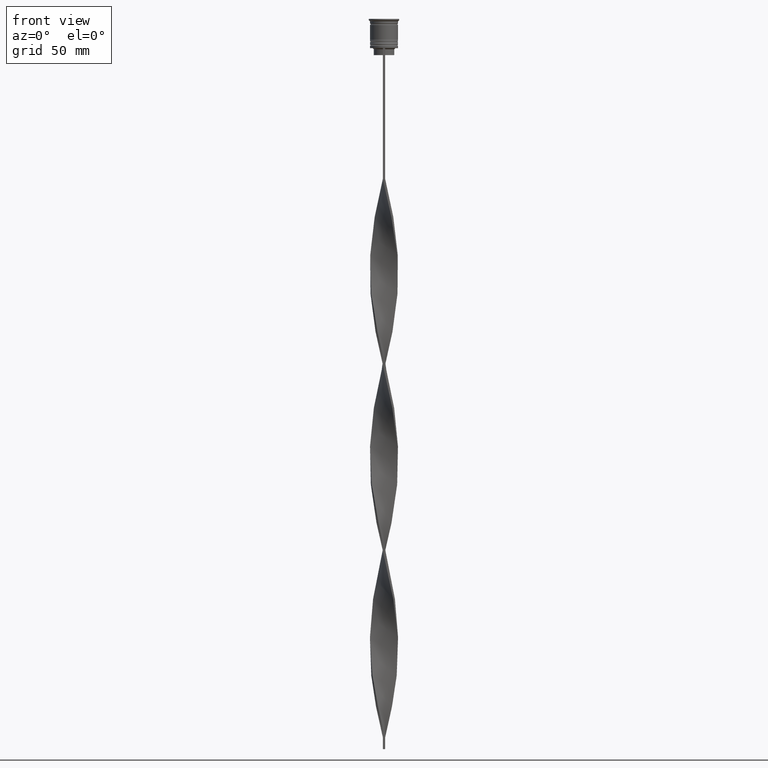
[diagram: clean part render]
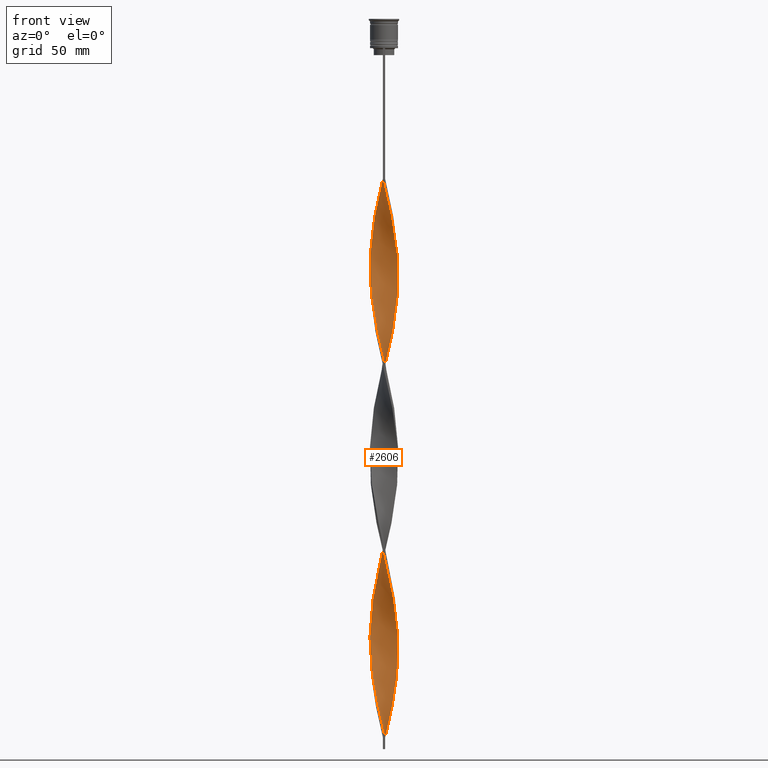
[diagram: same view with one face highlighted and labeled with its STEP entity id]
A machine part, front view. The second image highlights one B-rep face of the part: STEP entity #2606.
In plain terms, the highlighted face is a freeform B-spline surface patch.
Its self-contained STEP definition (entity closure, byte-faithful):
#2 = CARTESIAN_POINT ( 'NONE',  ( 1.839832417264294362, -5.752351491147217111, -237.7916666666667140 ) ) ;
#5 = CARTESIAN_POINT ( 'NONE',  ( -5.752351491147217111, 1.839832417264294362, -257.7083333333333144 ) ) ;
#9 = CARTESIAN_POINT ( 'NONE',  ( 3.889087296526011706, -4.596194077712558723, -88.41666666666667140 ) ) ;
#19 = CARTESIAN_POINT ( 'NONE',  ( 2.329630224397261529, 5.551830600583447684, -299.5333333333333030 ) ) ;
#27 = CARTESIAN_POINT ( 'NONE',  ( -0.9722102409477106910, 5.960649146587692293, -70.49166666666670267 ) ) ;
#29 = CARTESIAN_POINT ( 'NONE',  ( -5.960649146587691405, -0.9722102409477102469, -110.3250000000000171 ) ) ;
#49 = CARTESIAN_POINT ( 'NONE',  ( -5.860847594958396023, -1.378573708102106776, -195.9666666666666686 ) ) ;
#52 = CARTESIAN_POINT ( 'NONE',  ( 2.766568768664324995, -5.368484725653164702, -158.1250000000000284 ) ) ;
#58 = CARTESIAN_POINT ( 'NONE',  ( 0.4999999999999990563, -6.000000000000000000, -307.5000000000000000 ) ) ;
#71 = CARTESIAN_POINT ( 'NONE',  ( -6.004347276090942209, -0.4447626199438153849, -191.9833333333333485 ) ) ;
#73 = CARTESIAN_POINT ( 'NONE',  ( -2.278439736343097710, -5.573034394999980101, -295.5499999999999545 ) ) ;
#90 = CARTESIAN_POINT ( 'NONE',  ( -2.329630224397262417, -5.551830600583447684, -219.8666666666666742 ) ) ;
#92 = CARTESIAN_POINT ( 'NONE',  ( -6.000000000000000000, -0.4999999999999994449, -267.6666666666667425 ) ) ;
#108 = CARTESIAN_POINT ( 'NONE',  ( 2.278439736343096378, -5.573034394999980989, -80.45000000000000284 ) ) ;
#111 = CARTESIAN_POINT ( 'NONE',  ( 2.278439736343096378, -5.573034394999980989, -239.7833333333333599 ) ) ;
#115 = CARTESIAN_POINT ( 'NONE',  ( -5.393717298852745756, 2.717047055421900836, -253.7250000000000227 ) ) ;
#137 = CARTESIAN_POINT ( 'NONE',  ( -3.169446260531464166, 5.119043895260434240, -80.45000000000000284 ) ) ;
#139 = CARTESIAN_POINT ( 'NONE',  ( -0.02778975905228496524, 6.039350853412310371, -225.8416666666666970 ) ) ;
#148 = CARTESIAN_POINT ( 'NONE',  ( -2.766568768664325884, 5.368484725653163814, -78.45833333333334281 ) ) ;
#155 = CARTESIAN_POINT ( 'NONE',  ( 6.000000000000000000, -0.5000000000000001110, -108.3333333333333428 ) ) ;
#157 = CARTESIAN_POINT ( 'NONE',  ( 3.572323752398603336, -4.869603064867704667, -162.1083333333333769 ) ) ;
#159 = CARTESIAN_POINT ( 'NONE',  ( -1.432450960538953932, 5.847912811050711035, -231.8166666666666629 ) ) ;
#172 = EDGE_CURVE ( 'NONE', #2112, #1284, #221, .T. ) ;
#174 = CARTESIAN_POINT ( 'NONE',  ( -5.573034394999981878, -2.278439736343095934, -199.9500000000000171 ) ) ;
#176 = CARTESIAN_POINT ( 'NONE',  ( -5.573034394999980101, 2.278439736343096822, -96.38333333333335418 ) ) ;
#186 = CARTESIAN_POINT ( 'NONE',  ( -3.889087296526011261, 4.596194077712559611, -168.0833333333333712 ) ) ;
#189 = CARTESIAN_POINT ( 'NONE',  ( -2.329630224397260641, 5.551830600583447684, -76.46666666666666856 ) ) ;
#196 = CARTESIAN_POINT ( 'NONE',  ( -3.572323752398603780, -4.869603064867703779, -213.8916666666666799 ) ) ;
#198 = CARTESIAN_POINT ( 'NONE',  ( 5.969343698769574935, -0.9173149989399207449, -182.0250000000000341 ) ) ;
#206 = CARTESIAN_POINT ( 'NONE',  ( 4.560209340103448028, -3.931220010942312992, -92.40000000000000568 ) ) ;
#213 = CARTESIAN_POINT ( 'NONE',  ( -6.000000000000000000, 0.5000000000000008882, -188.0000000000000000 ) ) ;
#216 = CARTESIAN_POINT ( 'NONE',  ( -3.931220010942312992, 4.560209340103448028, -84.43333333333333712 ) ) ;
#221 =( BOUNDED_CURVE ( )  B_SPLINE_CURVE ( 2, ( #492, #3324, #1149, #2993, #189, #148, #1408, #3952, #1453, #474, #1738, #819, #3010, #2091, #880, #3725, #247, #3860, #359, #2175, #2871, #29, #1172, #3424, #3500, #2892, #681, #1285, #226, #3405, #3838, #995, #2445, #3762, #2559, #2249, #2267, #267, #1312, #1528, #571, #644, #976, #662, #1954, #52, #1838, #2800, #1487, #2584, #2781, #1509, #3539, #3112, #2758, #861, #551, #4030, #1915, #4051, #1212, #1600, #4068, #1194, #1815, #2136, #901, #3521, #1935, #3092, #2484, #2463, #3186, #339, #3742, #2153, #3204, #1620, #2648, #139, #3924, #793, #159, #1663, #400, #1420, #3583, #3003, #3880, #2288, #3227, #1060, #2934, #115, #2020, #2335, #1013, #3561, #747, #465, #92, #419, #2377, #1375, #2044, #707, #1350, #2315, #3288, #441, #3605, #1729, #1683, #1979, #73, #1707, #1997, #2624, #2691, #2983, #1037 ),
 .UNSPECIFIED., .F., .T. ) 
 B_SPLINE_CURVE_WITH_KNOTS ( ( 3, 2, 2, 2, 2, 2, 2, 2, 2, 2, 2, 2, 2, 2, 2, 2, 2, 2, 2, 2, 2, 2, 2, 2, 2, 2, 2, 2, 2, 2, 2, 2, 2, 2, 2, 2, 2, 2, 2, 2, 2, 2, 2, 2, 2, 2, 2, 2, 2, 2, 2, 2, 2, 2, 2, 2, 2, 2, 2, 2, 3 ),
 ( 0.000000000000000000, 0.01250000000000000243, 0.02500000000000000486, 0.03749999999999999861, 0.05000000000000000971, 0.06250000000000000000, 0.07499999999999999722, 0.08749999999999998057, 0.1000000000000000194, 0.1125000000000000028, 0.1250000000000000000, 0.1375000000000000111, 0.1499999999999999944, 0.1625000000000000056, 0.1749999999999999611, 0.1875000000000000000, 0.2000000000000000389, 0.2124999999999999944, 0.2250000000000000056, 0.2374999999999999611, 0.2500000000000000000, 0.2625000000000000111, 0.2750000000000000222, 0.2874999999999999778, 0.2999999999999999889, 0.3125000000000000000, 0.3250000000000000111, 0.3375000000000000777, 0.3499999999999999223, 0.3624999999999999889, 0.3750000000000000000, 0.3875000000000000111, 0.4000000000000000777, 0.4124999999999999223, 0.4249999999999999889, 0.4375000000000000000, 0.4500000000000000111, 0.4625000000000000777, 0.4749999999999999223, 0.4874999999999999889, 0.5000000000000000000, 0.5124999999999999556, 0.5250000000000000222, 0.5374999999999999778, 0.5500000000000000444, 0.5625000000000000000, 0.5749999999999999556, 0.5875000000000000222, 0.5999999999999999778, 0.6125000000000000444, 0.6250000000000000000, 0.6374999999999999556, 0.6500000000000000222, 0.6624999999999999778, 0.6750000000000001554, 0.6875000000000000000, 0.6999999999999998446, 0.7125000000000000222, 0.7249999999999999778, 0.7375000000000001554, 0.7500000000000000000 ),
 .UNSPECIFIED. ) 
 CURVE ( )  GEOMETRIC_REPRESENTATION_ITEM ( )  RATIONAL_B_SPLINE_CURVE ( ( 1.000000000000000000, 0.9969173337331279638, 1.000000000000000000, 0.9969173337331279638, 1.000000000000000000, 0.9969173337331279638, 1.000000000000000000, 0.9969173337331279638, 1.000000000000000000, 0.9969173337331279638, 1.000000000000000000, 0.9969173337331279638, 1.000000000000000000, 0.9969173337331279638, 1.000000000000000000, 0.9969173337331279638, 1.000000000000000000, 0.9969173337331279638, 1.000000000000000000, 0.9969173337331279638, 1.000000000000000000, 0.9969173337331279638, 1.000000000000000000, 0.9969173337331279638, 1.000000000000000000, 0.9969173337331279638, 1.000000000000000000, 0.9969173337331279638, 1.000000000000000000, 0.9969173337331279638, 1.000000000000000000, 0.9969173337331279638, 1.000000000000000000, 0.9969173337331279638, 1.000000000000000000, 0.9969173337331279638, 1.000000000000000000, 0.9969173337331279638, 1.000000000000000000, 0.9969173337331279638, 1.000000000000000000, 0.9969173337331279638, 1.000000000000000000, 0.9969173337331279638, 1.000000000000000000, 0.9969173337331279638, 1.000000000000000000, 0.9969173337331279638, 1.000000000000000000, 0.9969173337331279638, 1.000000000000000000, 0.9969173337331279638, 1.000000000000000000, 0.9969173337331279638, 1.000000000000000000, 0.9969173337331279638, 1.000000000000000000, 0.9969173337331279638, 1.000000000000000000, 0.9969173337331279638, 1.000000000000000000, 0.9969173337331279638, 1.000000000000000000, 0.9969173337331279638, 1.000000000000000000, 0.9969173337331279638, 1.000000000000000000, 0.9969173337331279638, 1.000000000000000000, 0.9969173337331279638, 1.000000000000000000, 0.9969173337331279638, 1.000000000000000000, 0.9969173337331279638, 1.000000000000000000, 0.9969173337331279638, 1.000000000000000000, 0.9969173337331279638, 1.000000000000000000, 0.9969173337331279638, 1.000000000000000000, 0.9969173337331279638, 1.000000000000000000, 0.9969173337331279638, 1.000000000000000000, 0.9969173337331279638, 1.000000000000000000, 0.9969173337331279638, 1.000000000000000000, 0.9969173337331279638, 1.000000000000000000, 0.9969173337331279638, 1.000000000000000000, 0.9969173337331279638, 1.000000000000000000, 0.9969173337331279638, 1.000000000000000000, 0.9969173337331279638, 1.000000000000000000, 0.9969173337331279638, 1.000000000000000000, 0.9969173337331279638, 1.000000000000000000, 0.9969173337331279638, 1.000000000000000000, 0.9969173337331279638, 1.000000000000000000, 0.9969173337331279638, 1.000000000000000000, 0.9969173337331279638, 1.000000000000000000, 0.9969173337331279638, 1.000000000000000000, 0.9969173337331279638, 1.000000000000000000, 0.9969173337331279638, 1.000000000000000000, 0.9969173337331279638, 1.000000000000000000, 0.9969173337331279638, 1.000000000000000000 ) ) 
 REPRESENTATION_ITEM ( '' )  );
#226 = CARTESIAN_POINT ( 'NONE',  ( -4.560209340103448916, -3.931220010942312104, -124.2666666666666799 ) ) ;
#232 = CARTESIAN_POINT ( 'NONE',  ( -3.889087296526011261, 4.596194077712559611, -168.0833333333333712 ) ) ;
#235 = CARTESIAN_POINT ( 'NONE',  ( -5.969343698769574935, 0.9173149989399227433, -261.6916666666666629 ) ) ;
#247 = CARTESIAN_POINT ( 'NONE',  ( -5.860847594958395135, 1.378573708102108331, -100.3666666666666742 ) ) ;
#255 = CARTESIAN_POINT ( 'NONE',  ( -2.329630224397262417, -5.551830600583447684, -219.8666666666666742 ) ) ;
#258 = CARTESIAN_POINT ( 'NONE',  ( 0.4999999999999990563, -6.000000000000000000, -307.5000000000000000 ) ) ;
#267 = CARTESIAN_POINT ( 'NONE',  ( -0.9173149989399231874, -5.969343698769575823, -142.1916666666666913 ) ) ;
#274 = CARTESIAN_POINT ( 'NONE',  ( 5.573034394999980989, 2.278439736343096378, -279.6166666666666742 ) ) ;
#278 = CARTESIAN_POINT ( 'NONE',  ( -4.596194077712558723, 3.889087296526011706, -247.7500000000000284 ) ) ;
#282 = CARTESIAN_POINT ( 'NONE',  ( 1.892691680130198284, 5.735176475513732441, -142.1916666666666913 ) ) ;
#290 = CARTESIAN_POINT ( 'NONE',  ( 6.039350853412310371, -0.02778975905228946511, -269.6583333333334167 ) ) ;
#293 = CARTESIAN_POINT ( 'NONE',  ( 0.02778975905228832713, -6.039350853412310371, -305.5083333333334963 ) ) ;
#298 = CARTESIAN_POINT ( 'NONE',  ( -3.527358977712830246, 4.902271885939098794, -166.0916666666666686 ) ) ;
#313 = CARTESIAN_POINT ( 'NONE',  ( 3.889087296526013038, 4.596194077712556947, -207.9166666666666572 ) ) ;
#319 = CARTESIAN_POINT ( 'NONE',  ( 2.766568768664326328, 5.368484725653163814, -138.2083333333333144 ) ) ;
#329 = CARTESIAN_POINT ( 'NONE',  ( 5.368484725653163814, -2.766568768664325884, -257.7083333333333144 ) ) ;
#336 = CARTESIAN_POINT ( 'NONE',  ( 2.329630224397261529, 5.551830600583447684, -299.5333333333333030 ) ) ;
#339 = CARTESIAN_POINT ( 'NONE',  ( 2.717047055421899060, 5.393717298852746644, -213.8916666666666799 ) ) ;
#357 = CARTESIAN_POINT ( 'NONE',  ( 1.378573708102107886, -5.860847594958395135, -235.8000000000000114 ) ) ;
#359 = CARTESIAN_POINT ( 'NONE',  ( -6.004347276090942209, 0.4447626199438168837, -104.3499999999999943 ) ) ;
#378 = CARTESIAN_POINT ( 'NONE',  ( 5.573034394999980989, 2.278439736343096378, -279.6166666666666742 ) ) ;
#398 = CARTESIAN_POINT ( 'NONE',  ( 5.147994592395920499, 3.122203016567364653, -283.6000000000000227 ) ) ;
#400 = CARTESIAN_POINT ( 'NONE',  ( -2.329630224397260641, 5.551830600583447684, -235.8000000000000114 ) ) ;
#416 = CARTESIAN_POINT ( 'NONE',  ( 6.000000000000000000, -0.5000000000000001110, -267.6666666666667425 ) ) ;
#417 = EDGE_CURVE ( 'NONE', #1423, #1187, #1668, .T. ) ;
#419 = CARTESIAN_POINT ( 'NONE',  ( -5.960649146587691405, -0.9722102409477102469, -269.6583333333334167 ) ) ;
#437 = CARTESIAN_POINT ( 'NONE',  ( 5.368484725653162926, 2.766568768664326772, -197.9583333333333997 ) ) ;
#441 = CARTESIAN_POINT ( 'NONE',  ( -4.250815615339194053, -4.290116269486020428, -285.5916666666666970 ) ) ;
#461 = CARTESIAN_POINT ( 'NONE',  ( 5.847912811050711035, -1.432450960538954376, -104.3499999999999943 ) ) ;
#463 = CARTESIAN_POINT ( 'NONE',  ( 1.432450960538953044, -5.847912811050711035, -152.1500000000000057 ) ) ;
#465 = CARTESIAN_POINT ( 'NONE',  ( -6.039350853412310371, -0.02778975905228876081, -265.6750000000000682 ) ) ;
#474 = CARTESIAN_POINT ( 'NONE',  ( -4.290116269486021316, 4.250815615339194053, -86.42499999999999716 ) ) ;
#480 = CARTESIAN_POINT ( 'NONE',  ( -5.551830600583447684, 2.329630224397261973, -180.0333333333333599 ) ) ;
#482 = CARTESIAN_POINT ( 'NONE',  ( -4.560209340103448916, -3.931220010942312104, -124.2666666666666799 ) ) ;
#492 = CARTESIAN_POINT ( 'NONE',  ( -0.4999999999999997780, 6.000000000000000888, -68.50000000000000000 ) ) ;
#500 = CARTESIAN_POINT ( 'NONE',  ( 0.9722102409477113572, 5.960649146587691405, -146.1750000000000114 ) ) ;
#502 = CARTESIAN_POINT ( 'NONE',  ( 5.752351491147215334, -1.839832417264297471, -178.0416666666667140 ) ) ;
#511 = CARTESIAN_POINT ( 'NONE',  ( -3.122203016567364653, 5.147994592395920499, -164.1000000000000227 ) ) ;
#522 = CARTESIAN_POINT ( 'NONE',  ( -2.278439736343095934, 5.573034394999980989, -160.1166666666666742 ) ) ;
#525 = CARTESIAN_POINT ( 'NONE',  ( -0.9173149989399231874, -5.969343698769574935, -142.1916666666666913 ) ) ;
#539 = CARTESIAN_POINT ( 'NONE',  ( 6.004347276090942209, 0.4447626199438162731, -112.3166666666666771 ) ) ;
#542 = CARTESIAN_POINT ( 'NONE',  ( -2.717047055421900836, -5.393717298852744868, -293.5583333333334508 ) ) ;
#551 = CARTESIAN_POINT ( 'NONE',  ( 5.860847594958395135, -1.378573708102108775, -180.0333333333333599 ) ) ;
#556 = CARTESIAN_POINT ( 'NONE',  ( -5.119043895260433352, 3.169446260531465498, -176.0500000000000114 ) ) ;
#559 = CARTESIAN_POINT ( 'NONE',  ( -5.735176475513732441, -1.892691680130197174, -273.6416666666666515 ) ) ;
#571 = CARTESIAN_POINT ( 'NONE',  ( 0.4999999999999990563, -6.000000000000000000, -148.1666666666666572 ) ) ;
#578 = CARTESIAN_POINT ( 'NONE',  ( 4.902271885939097906, 3.527358977712830246, -285.5916666666666970 ) ) ;
#581 = CARTESIAN_POINT ( 'NONE',  ( -1.432450960538953932, 5.847912811050711035, -231.8166666666666629 ) ) ;
#586 = CARTESIAN_POINT ( 'NONE',  ( -2.717047055421899060, 5.393717298852745756, -162.1083333333333769 ) ) ;
#595 = CARTESIAN_POINT ( 'NONE',  ( 6.000000000000000000, -0.5000000000000001110, -267.6666666666667425 ) ) ;
#597 = CARTESIAN_POINT ( 'NONE',  ( -1.378573708102108331, -5.860847594958395135, -299.5333333333333030 ) ) ;
#601 = CARTESIAN_POINT ( 'NONE',  ( 5.573034394999980989, 2.278439736343096378, -120.2833333333333456 ) ) ;
#611 = CARTESIAN_POINT ( 'NONE',  ( 4.869603064867703779, -3.572323752398604224, -253.7250000000000227 ) ) ;
#614 = CARTESIAN_POINT ( 'NONE',  ( -5.860847594958395135, 1.378573708102108331, -259.7000000000000455 ) ) ;
#618 = CARTESIAN_POINT ( 'NONE',  ( 3.931220010942312992, 4.560209340103447140, -132.2333333333333485 ) ) ;
#640 = CARTESIAN_POINT ( 'NONE',  ( 5.393717298852745756, 2.717047055421899948, -122.2750000000000341 ) ) ;
#644 = CARTESIAN_POINT ( 'NONE',  ( 0.9722102409477098028, -5.960649146587691405, -150.1583333333333599 ) ) ;
#652 = CARTESIAN_POINT ( 'NONE',  ( 3.527358977712831134, -4.902271885939097906, -245.7583333333333826 ) ) ;
#659 = CARTESIAN_POINT ( 'NONE',  ( -5.969343698769575823, -0.9173149989399185245, -193.9749999999999943 ) ) ;
#662 = CARTESIAN_POINT ( 'NONE',  ( 1.892691680130196952, -5.735176475513732441, -154.1416666666666799 ) ) ;
#679 = CARTESIAN_POINT ( 'NONE',  ( 5.860847594958396023, 1.378573708102107442, -275.6333333333333258 ) ) ;
#681 = CARTESIAN_POINT ( 'NONE',  ( -5.119043895260434240, -3.169446260531464166, -120.2833333333333456 ) ) ;
#704 = CARTESIAN_POINT ( 'NONE',  ( 5.368484725653163814, -2.766568768664325884, -257.7083333333333144 ) ) ;
#707 = CARTESIAN_POINT ( 'NONE',  ( -5.368484725653163814, -2.766568768664325439, -277.6250000000000568 ) ) ;
#725 = CARTESIAN_POINT ( 'NONE',  ( -4.902271885939097018, -3.527358977712832466, -205.9250000000000114 ) ) ;
#732 = CARTESIAN_POINT ( 'NONE',  ( 0.5000000000000005551, 6.000000000000000000, -307.5000000000000000 ) ) ;
#743 = CARTESIAN_POINT ( 'NONE',  ( 4.560209340103448028, -3.931220010942312992, -92.40000000000000568 ) ) ;
#745 = CARTESIAN_POINT ( 'NONE',  ( -1.378573708102108331, -5.860847594958395135, -140.1999999999999886 ) ) ;
#747 = CARTESIAN_POINT ( 'NONE',  ( -6.004347276090942209, 0.4447626199438168837, -263.6833333333333940 ) ) ;
#762 = CARTESIAN_POINT ( 'NONE',  ( 5.368484725653163814, -2.766568768664325884, -98.37500000000001421 ) ) ;
#766 = CARTESIAN_POINT ( 'NONE',  ( -3.572323752398604224, 4.869603064867704667, -82.44166666666666288 ) ) ;
#789 = CARTESIAN_POINT ( 'NONE',  ( 5.147994592395920499, 3.122203016567364653, -124.2666666666666799 ) ) ;
#791 = CARTESIAN_POINT ( 'NONE',  ( -5.119043895260434240, -3.169446260531464166, -120.2833333333333456 ) ) ;
#793 = CARTESIAN_POINT ( 'NONE',  ( -0.9722102409477105800, 5.960649146587691405, -229.8250000000000171 ) ) ;
#809 = CARTESIAN_POINT ( 'NONE',  ( -4.902271885939097018, -3.527358977712832466, -205.9250000000000114 ) ) ;
#811 = CARTESIAN_POINT ( 'NONE',  ( 5.573034394999980101, -2.278439736343097710, -176.0500000000000114 ) ) ;
#817 = CARTESIAN_POINT ( 'NONE',  ( 2.329630224397261529, 5.551830600583447684, -140.1999999999999886 ) ) ;
#819 = CARTESIAN_POINT ( 'NONE',  ( -4.902271885939097906, 3.527358977712831134, -90.40833333333335986 ) ) ;
#826 = CARTESIAN_POINT ( 'NONE',  ( 6.039350853412310371, -0.02778975905228946511, -110.3250000000000171 ) ) ;
#828 = CARTESIAN_POINT ( 'NONE',  ( -4.290116269486021316, 4.250815615339194053, -86.42499999999999716 ) ) ;
#837 = CARTESIAN_POINT ( 'NONE',  ( -0.4999999999999997780, -6.000000000000000000, -68.50000000000000000 ) ) ;
#838 = CARTESIAN_POINT ( 'NONE',  ( 3.122203016567365541, -5.147994592395921387, -84.43333333333333712 ) ) ;
#850 = CARTESIAN_POINT ( 'NONE',  ( -4.596194077712559611, -3.889087296526010373, -207.9166666666666572 ) ) ;
#853 = CARTESIAN_POINT ( 'NONE',  ( -4.869603064867704667, -3.572323752398604224, -281.6083333333334622 ) ) ;
#861 = CARTESIAN_POINT ( 'NONE',  ( 5.752351491147215334, -1.839832417264297248, -178.0416666666667140 ) ) ;
#866 = CARTESIAN_POINT ( 'NONE',  ( 1.378573708102107886, -5.860847594958395135, -235.8000000000000114 ) ) ;
#869 = CARTESIAN_POINT ( 'NONE',  ( -6.004347276090942209, 0.4447626199438168837, -263.6833333333333940 ) ) ;
#880 = CARTESIAN_POINT ( 'NONE',  ( -5.573034394999980101, 2.278439736343096822, -96.38333333333335418 ) ) ;
#881 = CARTESIAN_POINT ( 'NONE',  ( 0.5000000000000000000, 2.000000000000000000, -307.5000000000000000 ) ) ;
#888 = CARTESIAN_POINT ( 'NONE',  ( 4.869603064867706443, 3.572323752398602004, -201.9416666666667197 ) ) ;
#901 = CARTESIAN_POINT ( 'NONE',  ( 5.119043895260435129, 3.169446260531463722, -199.9500000000000171 ) ) ;
#911 = CARTESIAN_POINT ( 'NONE',  ( 0.4447626199438179939, 6.004347276090941321, -223.8500000000000227 ) ) ;
#916 = CARTESIAN_POINT ( 'NONE',  ( 5.368484725653163814, -2.766568768664325884, -98.37500000000002842 ) ) ;
#927 = CARTESIAN_POINT ( 'NONE',  ( 5.752351491147217111, 1.839832417264293918, -277.6250000000000568 ) ) ;
#930 = CARTESIAN_POINT ( 'NONE',  ( 2.717047055421899060, 5.393717298852745756, -213.8916666666666799 ) ) ;
#934 = CARTESIAN_POINT ( 'NONE',  ( 1.839832417264294362, -5.752351491147217111, -78.45833333333332860 ) ) ;
#949 = CARTESIAN_POINT ( 'NONE',  ( 6.039350853412310371, -0.02778975905228946511, -110.3250000000000171 ) ) ;
#972 = CARTESIAN_POINT ( 'NONE',  ( -3.931220010942313881, -4.560209340103447140, -211.9000000000000057 ) ) ;
#976 = CARTESIAN_POINT ( 'NONE',  ( 1.432450960538953044, -5.847912811050711035, -152.1500000000000057 ) ) ;
#992 = CARTESIAN_POINT ( 'NONE',  ( -4.290116269486023981, -4.250815615339190501, -209.9083333333333883 ) ) ;
#995 = CARTESIAN_POINT ( 'NONE',  ( -3.527358977712831134, -4.902271885939097906, -130.2416666666667027 ) ) ;
#1011 = CARTESIAN_POINT ( 'NONE',  ( 4.560209340103448028, -3.931220010942312992, -251.7333333333333769 ) ) ;
#1013 = CARTESIAN_POINT ( 'NONE',  ( -5.860847594958395135, 1.378573708102108331, -259.7000000000000455 ) ) ;
#1032 = CARTESIAN_POINT ( 'NONE',  ( -0.4999999999999997780, -6.000000000000000000, -68.50000000000000000 ) ) ;
#1034 = CARTESIAN_POINT ( 'NONE',  ( 0.9722102409477113572, 5.960649146587692293, -305.5083333333334963 ) ) ;
#1037 = CARTESIAN_POINT ( 'NONE',  ( 0.4999999999999990563, -6.000000000000000000, -307.5000000000000000 ) ) ;
#1057 = CARTESIAN_POINT ( 'NONE',  ( 5.752351491147217111, 1.839832417264293918, -277.6250000000000568 ) ) ;
#1060 = CARTESIAN_POINT ( 'NONE',  ( -4.902271885939097906, 3.527358977712831134, -249.7416666666667027 ) ) ;
#1076 = CARTESIAN_POINT ( 'NONE',  ( 3.527358977712831134, -4.902271885939097906, -86.42499999999999716 ) ) ;
#1078 = CARTESIAN_POINT ( 'NONE',  ( -5.393717298852744868, 2.717047055421900836, -94.39166666666669414 ) ) ;
#1095 = CARTESIAN_POINT ( 'NONE',  ( -1.378573708102106998, 5.860847594958396023, -156.1333333333333542 ) ) ;
#1098 = CARTESIAN_POINT ( 'NONE',  ( -0.4447626199438173278, -6.004347276090941321, -144.1833333333333371 ) ) ;
#1119 = CARTESIAN_POINT ( 'NONE',  ( 3.169446260531464610, 5.119043895260433352, -136.2166666666666686 ) ) ;
#1121 = CARTESIAN_POINT ( 'NONE',  ( -2.717047055421900836, -5.393717298852744868, -134.2249999999999943 ) ) ;
#1128 = CARTESIAN_POINT ( 'NONE',  ( 5.119043895260433352, -3.169446260531464610, -96.38333333333335418 ) ) ;
#1136 = CARTESIAN_POINT ( 'NONE',  ( 3.931220010942312992, 4.560209340103447140, -132.2333333333333485 ) ) ;
#1138 = CARTESIAN_POINT ( 'NONE',  ( -1.839832417264294806, -5.752351491147217111, -138.2083333333333144 ) ) ;
#1145 = CARTESIAN_POINT ( 'NONE',  ( 4.902271885939097906, 3.527358977712830246, -126.2583333333333258 ) ) ;
#1147 = EDGE_CURVE ( 'NONE', #1187, #1284, #2588, .T. ) ;
#1149 = CARTESIAN_POINT ( 'NONE',  ( -1.432450960538953932, 5.847912811050711035, -72.48333333333334849 ) ) ;
#1153 = LINE ( 'NONE', #1818, #2839 ) ;
#1155 = CARTESIAN_POINT ( 'NONE',  ( -1.892691680130196286, -5.735176475513732441, -221.8583333333333769 ) ) ;
#1158 = CARTESIAN_POINT ( 'NONE',  ( 5.551830600583448572, 2.329630224397259752, -195.9666666666666686 ) ) ;
#1172 = CARTESIAN_POINT ( 'NONE',  ( -5.847912811050711035, -1.432450960538953488, -112.3166666666666771 ) ) ;
#1182 = CARTESIAN_POINT ( 'NONE',  ( 0.9173149989399222992, -5.969343698769575823, -233.8083333333333371 ) ) ;
#1187 = VERTEX_POINT ( 'NONE', #732 ) ;
#1194 = CARTESIAN_POINT ( 'NONE',  ( 5.735176475513733330, 1.892691680130193843, -193.9750000000000227 ) ) ;
#1200 = CARTESIAN_POINT ( 'NONE',  ( 4.250815615339194053, -4.290116269486021316, -249.7416666666667027 ) ) ;
#1212 = CARTESIAN_POINT ( 'NONE',  ( 6.000000000000000000, 0.4999999999999987232, -188.0000000000000000 ) ) ;
#1217 = CARTESIAN_POINT ( 'NONE',  ( 2.717047055421899948, -5.393717298852746644, -241.7750000000000341 ) ) ;
#1220 = CARTESIAN_POINT ( 'NONE',  ( -0.02778975905228496524, 6.039350853412310371, -225.8416666666666970 ) ) ;
#1226 = CARTESIAN_POINT ( 'NONE',  ( -1.378573708102106998, 5.860847594958396023, -156.1333333333333542 ) ) ;
#1240 = CARTESIAN_POINT ( 'NONE',  ( 3.572323752398604224, 4.869603064867703779, -293.5583333333333940 ) ) ;
#1243 = CARTESIAN_POINT ( 'NONE',  ( -5.119043895260434240, -3.169446260531464166, -279.6166666666666742 ) ) ;
#1248 = CARTESIAN_POINT ( 'NONE',  ( 5.752351491147217111, 1.839832417264293918, -118.2916666666666998 ) ) ;
#1258 = CARTESIAN_POINT ( 'NONE',  ( 5.847912811050711035, -1.432450960538954376, -263.6833333333333940 ) ) ;
#1261 = CARTESIAN_POINT ( 'NONE',  ( -6.039350853412310371, -0.02778975905228876081, -265.6750000000000682 ) ) ;
#1265 = CARTESIAN_POINT ( 'NONE',  ( -5.960649146587692293, 0.9722102409477144658, -186.0083333333333258 ) ) ;
#1283 = CARTESIAN_POINT ( 'NONE',  ( -1.432450960538953932, 5.847912811050711035, -72.48333333333334849 ) ) ;
#1284 = VERTEX_POINT ( 'NONE', #58 ) ;
#1285 = CARTESIAN_POINT ( 'NONE',  ( -4.869603064867703779, -3.572323752398604224, -122.2750000000000199 ) ) ;
#1309 = CARTESIAN_POINT ( 'NONE',  ( 5.847912811050711035, -1.432450960538954376, -263.6833333333333940 ) ) ;
#1312 = CARTESIAN_POINT ( 'NONE',  ( -0.4447626199438173278, -6.004347276090941321, -144.1833333333333371 ) ) ;
#1328 = CARTESIAN_POINT ( 'NONE',  ( 4.902271885939097906, 3.527358977712830246, -285.5916666666666401 ) ) ;
#1347 = CARTESIAN_POINT ( 'NONE',  ( 1.892691680130198284, 5.735176475513732441, -301.5250000000000341 ) ) ;
#1350 = CARTESIAN_POINT ( 'NONE',  ( -5.119043895260434240, -3.169446260531464166, -279.6166666666666742 ) ) ;
#1370 = CARTESIAN_POINT ( 'NONE',  ( 3.122203016567365541, -5.147994592395921387, -84.43333333333333712 ) ) ;
#1372 = CARTESIAN_POINT ( 'NONE',  ( 3.122203016567365541, -5.147994592395921387, -243.7666666666666799 ) ) ;
#1375 = CARTESIAN_POINT ( 'NONE',  ( -5.735176475513732441, -1.892691680130197174, -273.6416666666666515 ) ) ;
#1393 = CARTESIAN_POINT ( 'NONE',  ( 1.839832417264294362, -5.752351491147217111, -78.45833333333334281 ) ) ;
#1395 = CARTESIAN_POINT ( 'NONE',  ( -5.969343698769574935, 0.9173149989399227433, -102.3583333333333343 ) ) ;
#1408 = CARTESIAN_POINT ( 'NONE',  ( -3.169446260531464166, 5.119043895260434240, -80.45000000000000284 ) ) ;
#1418 = CARTESIAN_POINT ( 'NONE',  ( -2.766568768664325884, 5.368484725653163814, -78.45833333333332860 ) ) ;
#1420 = CARTESIAN_POINT ( 'NONE',  ( -2.766568768664325884, 5.368484725653163814, -237.7916666666667140 ) ) ;
#1423 = VERTEX_POINT ( 'NONE', #837 ) ;
#1437 = CARTESIAN_POINT ( 'NONE',  ( -5.147994592395921387, -3.122203016567363765, -203.9333333333333655 ) ) ;
#1440 = CARTESIAN_POINT ( 'NONE',  ( -5.752351491147217111, 1.839832417264294362, -98.37500000000002842 ) ) ;
#1450 = CARTESIAN_POINT ( 'NONE',  ( -5.119043895260433352, 3.169446260531465498, -176.0500000000000114 ) ) ;
#1453 = CARTESIAN_POINT ( 'NONE',  ( -3.931220010942312992, 4.560209340103448028, -84.43333333333333712 ) ) ;
#1459 = CARTESIAN_POINT ( 'NONE',  ( 1.892691680130198284, 5.735176475513732441, -142.1916666666666913 ) ) ;
#1461 = CARTESIAN_POINT ( 'NONE',  ( 6.039350853412310371, 0.02778975905228534687, -186.0083333333333258 ) ) ;
#1468 = CARTESIAN_POINT ( 'NONE',  ( 0.9173149989399222992, -5.969343698769574935, -74.47500000000002274 ) ) ;
#1475 = CARTESIAN_POINT ( 'NONE',  ( 5.573034394999980989, 2.278439736343096378, -120.2833333333333456 ) ) ;
#1478 = CARTESIAN_POINT ( 'NONE',  ( 3.169446260531463722, -5.119043895260434240, -160.1166666666666742 ) ) ;
#1487 = CARTESIAN_POINT ( 'NONE',  ( 3.931220010942312104, -4.560209340103448916, -164.1000000000000227 ) ) ;
#1493 = CARTESIAN_POINT ( 'NONE',  ( -4.560209340103447140, 3.931220010942312992, -172.0666666666666629 ) ) ;
#1496 = CARTESIAN_POINT ( 'NONE',  ( -6.000000000000000000, -0.4999999999999994449, -267.6666666666667425 ) ) ;
#1509 = CARTESIAN_POINT ( 'NONE',  ( 4.902271885939097018, -3.527358977712834243, -170.0750000000000455 ) ) ;
#1517 = CARTESIAN_POINT ( 'NONE',  ( 3.889087296526011706, -4.596194077712558723, -247.7500000000000284 ) ) ;
#1520 = CARTESIAN_POINT ( 'NONE',  ( -5.573034394999980101, 2.278439736343096822, -255.7166666666666970 ) ) ;
#1528 = CARTESIAN_POINT ( 'NONE',  ( 0.02778975905228832713, -6.039350853412310371, -146.1750000000000114 ) ) ;
#1536 = CARTESIAN_POINT ( 'NONE',  ( 5.147994592395920499, 3.122203016567364653, -283.6000000000000227 ) ) ;
#1539 = CARTESIAN_POINT ( 'NONE',  ( -5.960649146587692293, -0.9722102409477103580, -269.6583333333334167 ) ) ;
#1543 = CARTESIAN_POINT ( 'NONE',  ( -0.02778975905228908000, -6.039350853412310371, -70.49166666666670267 ) ) ;
#1551 = CARTESIAN_POINT ( 'NONE',  ( 4.290116269486021316, 4.250815615339194053, -289.5750000000000455 ) ) ;
#1554 = CARTESIAN_POINT ( 'NONE',  ( 0.9173149989399209669, 5.969343698769574935, -221.8583333333333769 ) ) ;
#1560 = CARTESIAN_POINT ( 'NONE',  ( 5.860847594958396023, 1.378573708102107442, -116.3000000000000114 ) ) ;
#1567 = CARTESIAN_POINT ( 'NONE',  ( 0.5000000000000005551, 6.000000000000000000, -307.5000000000000000 ) ) ;
#1572 = CARTESIAN_POINT ( 'NONE',  ( 5.735176475513732441, -1.892691680130197840, -261.6916666666666629 ) ) ;
#1575 = CARTESIAN_POINT ( 'NONE',  ( 2.278439736343097710, 5.573034394999980101, -215.8833333333333542 ) ) ;
#1581 = CARTESIAN_POINT ( 'NONE',  ( -2.278439736343095934, 5.573034394999980989, -160.1166666666666742 ) ) ;
#1591 = CARTESIAN_POINT ( 'NONE',  ( 3.931220010942312992, 4.560209340103447140, -291.5666666666667197 ) ) ;
#1598 = CARTESIAN_POINT ( 'NONE',  ( -0.4999999999999997780, 6.000000000000000000, -68.50000000000000000 ) ) ;
#1600 = CARTESIAN_POINT ( 'NONE',  ( 5.960649146587691405, 0.9722102409477122453, -189.9916666666667027 ) ) ;
#1618 = CARTESIAN_POINT ( 'NONE',  ( 4.869603064867703779, -3.572323752398604224, -253.7250000000000512 ) ) ;
#1620 = CARTESIAN_POINT ( 'NONE',  ( 0.9173149989399209669, 5.969343698769575823, -221.8583333333333769 ) ) ;
#1638 = CARTESIAN_POINT ( 'NONE',  ( 0.9173149989399222992, -5.969343698769575823, -74.47500000000000853 ) ) ;
#1641 = CARTESIAN_POINT ( 'NONE',  ( -4.596194077712559611, -3.889087296526010373, -207.9166666666666572 ) ) ;
#1661 = CARTESIAN_POINT ( 'NONE',  ( 4.290116269486021316, 4.250815615339194053, -289.5750000000000455 ) ) ;
#1663 = CARTESIAN_POINT ( 'NONE',  ( -1.892691680130197396, 5.735176475513732441, -233.8083333333333371 ) ) ;
#1668 =( BOUNDED_CURVE ( )  B_SPLINE_CURVE ( 2, ( #1032, #2310, #3579, #1638, #2949, #1393, #108, #2999, #1370, #1076, #2911, #3920, #743, #2351, #3622, #762, #2038, #3309, #461, #1725, #155, #826, #539, #2746, #3060, #2453, #1475, #3689, #789, #2061, #2141, #2101, #1136, #2372, #1119, #3373, #1802, #1459, #3077, #500, #3410, #2409, #3351, #2709, #1095, #3330, #522, #3648, #2392, #1784, #232, #2729, #1493, #1764, #556, #3731, #480, #3982, #1820, #1745, #213, #3097, #3018, #4017, #3668, #2687, #174, #3960, #1437, #809, #850, #2081, #3042, #196, #3999, #2766, #255, #1155, #2429, #3712, #2125, #3392, #4039, #1182, #866, #2, #3118, #1217, #2862, #652, #1517, #1200, #2845, #611, #3789, #329, #3431, #1572, #1258, #2468, #595, #290, #2158, #3747, #3469, #927, #274, #3769, #1536, #578, #1844, #1551, #1591, #1240, #1861, #2805, #19, #2531, #1880, #3806, #1903 ),
 .UNSPECIFIED., .F., .T. ) 
 B_SPLINE_CURVE_WITH_KNOTS ( ( 3, 2, 2, 2, 2, 2, 2, 2, 2, 2, 2, 2, 2, 2, 2, 2, 2, 2, 2, 2, 2, 2, 2, 2, 2, 2, 2, 2, 2, 2, 2, 2, 2, 2, 2, 2, 2, 2, 2, 2, 2, 2, 2, 2, 2, 2, 2, 2, 2, 2, 2, 2, 2, 2, 2, 2, 2, 2, 2, 2, 3 ),
 ( 0.000000000000000000, 0.01250000000000000243, 0.02500000000000000486, 0.03749999999999999861, 0.05000000000000000971, 0.06250000000000000000, 0.07499999999999999722, 0.08749999999999998057, 0.1000000000000000194, 0.1125000000000000028, 0.1250000000000000000, 0.1375000000000000111, 0.1499999999999999944, 0.1625000000000000056, 0.1749999999999999611, 0.1875000000000000000, 0.2000000000000000389, 0.2124999999999999944, 0.2250000000000000056, 0.2374999999999999611, 0.2500000000000000000, 0.2625000000000000111, 0.2750000000000000222, 0.2874999999999999778, 0.2999999999999999889, 0.3125000000000000000, 0.3250000000000000111, 0.3375000000000000777, 0.3499999999999999223, 0.3624999999999999889, 0.3750000000000000000, 0.3875000000000000111, 0.4000000000000000777, 0.4124999999999999223, 0.4249999999999999889, 0.4375000000000000000, 0.4500000000000000111, 0.4625000000000000777, 0.4749999999999999223, 0.4874999999999999889, 0.5000000000000000000, 0.5124999999999999556, 0.5250000000000000222, 0.5374999999999999778, 0.5500000000000000444, 0.5625000000000000000, 0.5749999999999999556, 0.5875000000000000222, 0.5999999999999999778, 0.6125000000000000444, 0.6250000000000000000, 0.6374999999999999556, 0.6500000000000000222, 0.6624999999999999778, 0.6750000000000001554, 0.6875000000000000000, 0.6999999999999998446, 0.7125000000000000222, 0.7249999999999999778, 0.7375000000000001554, 0.7500000000000000000 ),
 .UNSPECIFIED. ) 
 CURVE ( )  GEOMETRIC_REPRESENTATION_ITEM ( )  RATIONAL_B_SPLINE_CURVE ( ( 1.000000000000000000, 0.9969173337331279638, 1.000000000000000000, 0.9969173337331279638, 1.000000000000000000, 0.9969173337331279638, 1.000000000000000000, 0.9969173337331279638, 1.000000000000000000, 0.9969173337331279638, 1.000000000000000000, 0.9969173337331279638, 1.000000000000000000, 0.9969173337331279638, 1.000000000000000000, 0.9969173337331279638, 1.000000000000000000, 0.9969173337331279638, 1.000000000000000000, 0.9969173337331279638, 1.000000000000000000, 0.9969173337331279638, 1.000000000000000000, 0.9969173337331279638, 1.000000000000000000, 0.9969173337331279638, 1.000000000000000000, 0.9969173337331279638, 1.000000000000000000, 0.9969173337331279638, 1.000000000000000000, 0.9969173337331279638, 1.000000000000000000, 0.9969173337331279638, 1.000000000000000000, 0.9969173337331279638, 1.000000000000000000, 0.9969173337331279638, 1.000000000000000000, 0.9969173337331279638, 1.000000000000000000, 0.9969173337331279638, 1.000000000000000000, 0.9969173337331279638, 1.000000000000000000, 0.9969173337331279638, 1.000000000000000000, 0.9969173337331279638, 1.000000000000000000, 0.9969173337331279638, 1.000000000000000000, 0.9969173337331279638, 1.000000000000000000, 0.9969173337331279638, 1.000000000000000000, 0.9969173337331279638, 1.000000000000000000, 0.9969173337331279638, 1.000000000000000000, 0.9969173337331279638, 1.000000000000000000, 0.9969173337331279638, 1.000000000000000000, 0.9969173337331279638, 1.000000000000000000, 0.9969173337331279638, 1.000000000000000000, 0.9969173337331279638, 1.000000000000000000, 0.9969173337331279638, 1.000000000000000000, 0.9969173337331279638, 1.000000000000000000, 0.9969173337331279638, 1.000000000000000000, 0.9969173337331279638, 1.000000000000000000, 0.9969173337331279638, 1.000000000000000000, 0.9969173337331279638, 1.000000000000000000, 0.9969173337331279638, 1.000000000000000000, 0.9969173337331279638, 1.000000000000000000, 0.9969173337331279638, 1.000000000000000000, 0.9969173337331279638, 1.000000000000000000, 0.9969173337331279638, 1.000000000000000000, 0.9969173337331279638, 1.000000000000000000, 0.9969173337331279638, 1.000000000000000000, 0.9969173337331279638, 1.000000000000000000, 0.9969173337331279638, 1.000000000000000000, 0.9969173337331279638, 1.000000000000000000, 0.9969173337331279638, 1.000000000000000000, 0.9969173337331279638, 1.000000000000000000, 0.9969173337331279638, 1.000000000000000000, 0.9969173337331279638, 1.000000000000000000, 0.9969173337331279638, 1.000000000000000000, 0.9969173337331279638, 1.000000000000000000, 0.9969173337331279638, 1.000000000000000000, 0.9969173337331279638, 1.000000000000000000, 0.9969173337331279638, 1.000000000000000000, 0.9969173337331279638, 1.000000000000000000 ) ) 
 REPRESENTATION_ITEM ( '' )  );
#1681 = CARTESIAN_POINT ( 'NONE',  ( -0.9722102409477147988, -5.960649146587692293, -225.8416666666666970 ) ) ;
#1683 = CARTESIAN_POINT ( 'NONE',  ( -3.122203016567365985, -5.147994592395920499, -291.5666666666667197 ) ) ;
#1703 = CARTESIAN_POINT ( 'NONE',  ( -6.004347276090942209, 0.4447626199438168837, -104.3499999999999943 ) ) ;
#1707 = CARTESIAN_POINT ( 'NONE',  ( -1.839832417264294806, -5.752351491147217111, -297.5416666666666856 ) ) ;
#1725 = CARTESIAN_POINT ( 'NONE',  ( 5.960649146587691405, -0.9722102409477109131, -106.3416666666666686 ) ) ;
#1727 = CARTESIAN_POINT ( 'NONE',  ( 1.892691680130196952, -5.735176475513732441, -154.1416666666666799 ) ) ;
#1729 = CARTESIAN_POINT ( 'NONE',  ( -3.527358977712831134, -4.902271885939097906, -289.5750000000000455 ) ) ;
#1738 = CARTESIAN_POINT ( 'NONE',  ( -4.596194077712558723, 3.889087296526011706, -88.41666666666667140 ) ) ;
#1745 = CARTESIAN_POINT ( 'NONE',  ( -5.960649146587691405, 0.9722102409477143548, -186.0083333333333258 ) ) ;
#1747 = CARTESIAN_POINT ( 'NONE',  ( 5.147994592395920499, -3.122203016567365985, -172.0666666666666629 ) ) ;
#1764 = CARTESIAN_POINT ( 'NONE',  ( -4.869603064867703779, 3.572323752398603336, -174.0583333333333371 ) ) ;
#1766 = CARTESIAN_POINT ( 'NONE',  ( 5.860847594958395135, -1.378573708102108775, -180.0333333333333599 ) ) ;
#1770 = CARTESIAN_POINT ( 'NONE',  ( -0.4999999999999997780, 6.000000000000000888, -68.50000000000000000 ) ) ;
#1774 = CARTESIAN_POINT ( 'NONE',  ( -5.368484725653162037, 2.766568768664328548, -178.0416666666667140 ) ) ;
#1784 = CARTESIAN_POINT ( 'NONE',  ( -3.527358977712830246, 4.902271885939098794, -166.0916666666666970 ) ) ;
#1787 = CARTESIAN_POINT ( 'NONE',  ( 0.9722102409477099139, -5.960649146587692293, -150.1583333333333599 ) ) ;
#1802 = CARTESIAN_POINT ( 'NONE',  ( 2.329630224397261529, 5.551830600583447684, -140.1999999999999886 ) ) ;
#1805 = CARTESIAN_POINT ( 'NONE',  ( -1.892691680130197396, 5.735176475513732441, -233.8083333333333371 ) ) ;
#1815 = CARTESIAN_POINT ( 'NONE',  ( 5.551830600583448572, 2.329630224397259752, -195.9666666666666686 ) ) ;
#1818 = CARTESIAN_POINT ( 'NONE',  ( -0.4999999999999997780, -6.000000000000000000, -68.50000000000000000 ) ) ;
#1820 = CARTESIAN_POINT ( 'NONE',  ( -5.847912811050710147, 1.432450960538954821, -184.0166666666666515 ) ) ;
#1823 = CARTESIAN_POINT ( 'NONE',  ( -1.839832417264294806, -5.752351491147217111, -297.5416666666666856 ) ) ;
#1830 = EDGE_LOOP ( 'NONE', ( #2261, #2214, #3333, #2535 ) ) ;
#1838 = CARTESIAN_POINT ( 'NONE',  ( 3.169446260531463722, -5.119043895260434240, -160.1166666666666742 ) ) ;
#1844 = CARTESIAN_POINT ( 'NONE',  ( 4.596194077712558723, 3.889087296526011261, -287.5833333333333712 ) ) ;
#1847 = CARTESIAN_POINT ( 'NONE',  ( 1.378573708102109663, 5.860847594958395135, -219.8666666666666742 ) ) ;
#1852 = CARTESIAN_POINT ( 'NONE',  ( 2.278439736343096378, -5.573034394999980989, -80.45000000000000284 ) ) ;
#1861 = CARTESIAN_POINT ( 'NONE',  ( 3.169446260531464610, 5.119043895260433352, -295.5499999999999545 ) ) ;
#1866 = CARTESIAN_POINT ( 'NONE',  ( -3.527358977712831134, -4.902271885939097906, -289.5750000000000455 ) ) ;
#1871 = CARTESIAN_POINT ( 'NONE',  ( 4.596194077712558723, 3.889087296526011261, -128.2500000000000000 ) ) ;
#1880 = CARTESIAN_POINT ( 'NONE',  ( 1.432450960538954376, 5.847912811050710147, -303.5166666666666515 ) ) ;
#1888 = CARTESIAN_POINT ( 'NONE',  ( 5.960649146587692293, -0.9722102409477109131, -106.3416666666666686 ) ) ;
#1903 = CARTESIAN_POINT ( 'NONE',  ( 0.5000000000000005551, 6.000000000000000000, -307.5000000000000000 ) ) ;
#1912 = CARTESIAN_POINT ( 'NONE',  ( 0.4447626199438165506, -6.004347276090942209, -231.8166666666666629 ) ) ;
#1915 = CARTESIAN_POINT ( 'NONE',  ( 6.004347276090941321, -0.4447626199438176609, -184.0166666666666515 ) ) ;
#1932 = CARTESIAN_POINT ( 'NONE',  ( -5.752351491147216223, -1.839832417264295694, -197.9583333333333997 ) ) ;
#1935 = CARTESIAN_POINT ( 'NONE',  ( 4.560209340103449804, 3.931220010942311216, -203.9333333333333655 ) ) ;
#1952 = CARTESIAN_POINT ( 'NONE',  ( -5.147994592395921387, -3.122203016567363765, -203.9333333333333655 ) ) ;
#1954 = CARTESIAN_POINT ( 'NONE',  ( 2.329630224397260196, -5.551830600583448572, -156.1333333333333542 ) ) ;
#1976 = CARTESIAN_POINT ( 'NONE',  ( 5.960649146587692293, -0.9722102409477109131, -265.6750000000000682 ) ) ;
#1979 = CARTESIAN_POINT ( 'NONE',  ( -2.717047055421900836, -5.393717298852745756, -293.5583333333333940 ) ) ;
#1995 = CARTESIAN_POINT ( 'NONE',  ( 0.5000000000000005551, 6.000000000000000000, -307.5000000000000000 ) ) ;
#1997 = CARTESIAN_POINT ( 'NONE',  ( -1.378573708102108331, -5.860847594958395135, -299.5333333333333030 ) ) ;
#2015 = CARTESIAN_POINT ( 'NONE',  ( 0.4999999999999990563, -6.000000000000000000, -148.1666666666666572 ) ) ;
#2020 = CARTESIAN_POINT ( 'NONE',  ( -5.573034394999980101, 2.278439736343096822, -255.7166666666666970 ) ) ;
#2038 = CARTESIAN_POINT ( 'NONE',  ( 5.551830600583447684, -2.329630224397261085, -100.3666666666666742 ) ) ;
#2040 = CARTESIAN_POINT ( 'NONE',  ( -5.735176475513732441, -1.892691680130197174, -114.3083333333333655 ) ) ;
#2044 = CARTESIAN_POINT ( 'NONE',  ( -5.551830600583448572, -2.329630224397260641, -275.6333333333333258 ) ) ;
#2061 = CARTESIAN_POINT ( 'NONE',  ( 4.902271885939097906, 3.527358977712830246, -126.2583333333333400 ) ) ;
#2063 = CARTESIAN_POINT ( 'NONE',  ( 0.02778975905228832713, -6.039350853412310371, -146.1749999999999829 ) ) ;
#2081 = CARTESIAN_POINT ( 'NONE',  ( -4.290116269486023981, -4.250815615339190501, -209.9083333333333599 ) ) ;
#2083 = CARTESIAN_POINT ( 'NONE',  ( -3.122203016567365985, -5.147994592395920499, -132.2333333333333485 ) ) ;
#2089 = CARTESIAN_POINT ( 'NONE',  ( 1.432450960538954376, 5.847912811050710147, -144.1833333333333371 ) ) ;
#2091 = CARTESIAN_POINT ( 'NONE',  ( -5.393717298852745756, 2.717047055421900836, -94.39166666666669414 ) ) ;
#2101 = CARTESIAN_POINT ( 'NONE',  ( 4.290116269486021316, 4.250815615339194053, -130.2416666666667027 ) ) ;
#2105 = CARTESIAN_POINT ( 'NONE',  ( -2.329630224397260641, 5.551830600583447684, -76.46666666666666856 ) ) ;
#2112 = VERTEX_POINT ( 'NONE', #1770 ) ;
#2114 = CARTESIAN_POINT ( 'NONE',  ( 5.969343698769574935, 0.9173149989399217441, -114.3083333333333655 ) ) ;
#2125 = CARTESIAN_POINT ( 'NONE',  ( -0.4999999999999997780, -6.000000000000000000, -227.8333333333333428 ) ) ;
#2128 = CARTESIAN_POINT ( 'NONE',  ( -4.560209340103448916, -3.931220010942312104, -283.6000000000000227 ) ) ;
#2136 = CARTESIAN_POINT ( 'NONE',  ( 5.368484725653162926, 2.766568768664326772, -197.9583333333333712 ) ) ;
#2141 = CARTESIAN_POINT ( 'NONE',  ( 4.596194077712558723, 3.889087296526011261, -128.2500000000000000 ) ) ;
#2144 = CARTESIAN_POINT ( 'NONE',  ( -4.290116269486021316, 4.250815615339194053, -245.7583333333333826 ) ) ;
#2153 = CARTESIAN_POINT ( 'NONE',  ( 1.839832417264297693, 5.752351491147215334, -217.8750000000000284 ) ) ;
#2158 = CARTESIAN_POINT ( 'NONE',  ( 6.004347276090942209, 0.4447626199438162731, -271.6499999999999773 ) ) ;
#2161 = CARTESIAN_POINT ( 'NONE',  ( 4.560209340103449804, 3.931220010942311216, -203.9333333333333655 ) ) ;
#2175 = CARTESIAN_POINT ( 'NONE',  ( -6.039350853412310371, -0.02778975905228876081, -106.3416666666666686 ) ) ;
#2184 = CARTESIAN_POINT ( 'NONE',  ( -3.889087296526012150, -4.596194077712557835, -287.5833333333333712 ) ) ;
#2188 = CARTESIAN_POINT ( 'NONE',  ( 4.290116269486021316, 4.250815615339194053, -130.2416666666667027 ) ) ;
#2204 = CARTESIAN_POINT ( 'NONE',  ( 2.717047055421899948, -5.393717298852745756, -82.44166666666666288 ) ) ;
#2214 = ORIENTED_EDGE ( 'NONE', *, *, #172, .T. ) ;
#2223 = CARTESIAN_POINT ( 'NONE',  ( 4.869603064867703779, -3.572323752398604224, -94.39166666666669414 ) ) ;
#2246 = CARTESIAN_POINT ( 'NONE',  ( 3.527358977712831134, -4.902271885939097906, -245.7583333333333826 ) ) ;
#2249 = CARTESIAN_POINT ( 'NONE',  ( -1.839832417264294806, -5.752351491147217111, -138.2083333333333144 ) ) ;
#2261 = ORIENTED_EDGE ( 'NONE', *, *, #3291, .T. ) ;
#2264 = CARTESIAN_POINT ( 'NONE',  ( -0.4999999999999997780, -6.000000000000000000, -227.8333333333333428 ) ) ;
#2267 = CARTESIAN_POINT ( 'NONE',  ( -1.378573708102108331, -5.860847594958395135, -140.1999999999999886 ) ) ;
#2284 = CARTESIAN_POINT ( 'NONE',  ( -2.766568768664328992, -5.368484725653162037, -217.8750000000000568 ) ) ;
#2288 = CARTESIAN_POINT ( 'NONE',  ( -4.290116269486021316, 4.250815615339194053, -245.7583333333333826 ) ) ;
#2310 = CARTESIAN_POINT ( 'NONE',  ( -0.02778975905228908347, -6.039350853412310371, -70.49166666666668846 ) ) ;
#2312 = CARTESIAN_POINT ( 'NONE',  ( -1.892691680130196286, -5.735176475513732441, -221.8583333333333769 ) ) ;
#2315 = CARTESIAN_POINT ( 'NONE',  ( -4.869603064867703779, -3.572323752398604224, -281.6083333333334053 ) ) ;
#2333 = CARTESIAN_POINT ( 'NONE',  ( 3.169446260531464610, 5.119043895260433352, -295.5499999999999545 ) ) ;
#2335 = CARTESIAN_POINT ( 'NONE',  ( -5.752351491147217111, 1.839832417264294362, -257.7083333333333144 ) ) ;
#2351 = CARTESIAN_POINT ( 'NONE',  ( 4.869603064867703779, -3.572323752398604224, -94.39166666666669414 ) ) ;
#2353 = CARTESIAN_POINT ( 'NONE',  ( -3.889087296526012150, -4.596194077712557835, -128.2500000000000000 ) ) ;
#2372 = CARTESIAN_POINT ( 'NONE',  ( 3.572323752398604224, 4.869603064867703779, -134.2250000000000227 ) ) ;
#2374 = CARTESIAN_POINT ( 'NONE',  ( 2.766568768664324995, -5.368484725653164702, -158.1250000000000000 ) ) ;
#2377 = CARTESIAN_POINT ( 'NONE',  ( -5.847912811050711035, -1.432450960538953488, -271.6499999999999773 ) ) ;
#2392 = CARTESIAN_POINT ( 'NONE',  ( -3.122203016567364653, 5.147994592395920499, -164.1000000000000227 ) ) ;
#2394 = CARTESIAN_POINT ( 'NONE',  ( 4.596194077712557835, -3.889087296526013038, -168.0833333333333712 ) ) ;
#2401 = CARTESIAN_POINT ( 'NONE',  ( 4.250815615339194053, -4.290116269486021316, -90.40833333333334565 ) ) ;
#2409 = CARTESIAN_POINT ( 'NONE',  ( 0.02778975905228979124, 6.039350853412310371, -150.1583333333333599 ) ) ;
#2411 = CARTESIAN_POINT ( 'NONE',  ( 5.847912811050711035, 1.432450960538952600, -191.9833333333333485 ) ) ;
#2417 = CARTESIAN_POINT ( 'NONE',  ( -0.9173149989399215221, 5.969343698769574935, -154.1416666666666799 ) ) ;
#2429 = CARTESIAN_POINT ( 'NONE',  ( -1.432450960538955265, -5.847912811050710147, -223.8500000000000227 ) ) ;
#2433 = CARTESIAN_POINT ( 'NONE',  ( -5.147994592395921387, 3.122203016567365541, -92.40000000000000568 ) ) ;
#2445 = CARTESIAN_POINT ( 'NONE',  ( -3.122203016567365985, -5.147994592395920499, -132.2333333333333485 ) ) ;
#2453 = CARTESIAN_POINT ( 'NONE',  ( 5.752351491147217111, 1.839832417264293918, -118.2916666666666998 ) ) ;
#2456 = CARTESIAN_POINT ( 'NONE',  ( 3.527358977712834243, 4.902271885939096130, -209.9083333333333883 ) ) ;
#2463 = CARTESIAN_POINT ( 'NONE',  ( 3.527358977712834243, 4.902271885939096130, -209.9083333333333599 ) ) ;
#2468 = CARTESIAN_POINT ( 'NONE',  ( 5.960649146587691405, -0.9722102409477109131, -265.6750000000000682 ) ) ;
#2471 = CARTESIAN_POINT ( 'NONE',  ( -5.147994592395921387, 3.122203016567365541, -251.7333333333333769 ) ) ;
#2484 = CARTESIAN_POINT ( 'NONE',  ( 3.889087296526013038, 4.596194077712556947, -207.9166666666666572 ) ) ;
#2493 = CARTESIAN_POINT ( 'NONE',  ( -0.9722102409477106910, 5.960649146587692293, -229.8250000000000455 ) ) ;
#2499 = CARTESIAN_POINT ( 'NONE',  ( -0.4999999999999997780, -6.000000000000000000, -68.50000000000000000 ) ) ;
#2515 = CARTESIAN_POINT ( 'NONE',  ( -5.368484725653163814, -2.766568768664325439, -277.6250000000000568 ) ) ;
#2519 = CARTESIAN_POINT ( 'NONE',  ( -5.551830600583447684, 2.329630224397261973, -180.0333333333333599 ) ) ;
#2531 = CARTESIAN_POINT ( 'NONE',  ( 1.892691680130198284, 5.735176475513732441, -301.5250000000000341 ) ) ;
#2535 = ORIENTED_EDGE ( 'NONE', *, *, #417, .F. ) ;
#2538 = CARTESIAN_POINT ( 'NONE',  ( 3.527358977712831134, -4.902271885939097906, -86.42499999999999716 ) ) ;
#2556 = CARTESIAN_POINT ( 'NONE',  ( -5.393717298852745756, -2.717047055421897284, -201.9416666666667197 ) ) ;
#2559 = CARTESIAN_POINT ( 'NONE',  ( -2.278439736343097710, -5.573034394999980101, -136.2166666666666686 ) ) ;
#2582 = CARTESIAN_POINT ( 'NONE',  ( 6.039350853412310371, -0.02778975905228946511, -269.6583333333334167 ) ) ;
#2584 = CARTESIAN_POINT ( 'NONE',  ( 4.290116269486020428, -4.250815615339194942, -166.0916666666666970 ) ) ;
#2588 = B_SPLINE_CURVE_WITH_KNOTS ( 'NONE', 3,
 ( #1567, #881, #2840, #4112 ),
 .UNSPECIFIED., .F., .F.,
 ( 4, 4 ),
 ( 0.000000000000000000, 1.000000000000000000 ),
 .UNSPECIFIED. ) ;
#2600 = CARTESIAN_POINT ( 'NONE',  ( 4.596194077712558723, 3.889087296526011261, -287.5833333333333712 ) ) ;
#2606 = ADVANCED_FACE ( 'NONE', ( #3125 ), #2663, .T. ) ;
#2620 = CARTESIAN_POINT ( 'NONE',  ( 6.004347276090942209, 0.4447626199438162731, -271.6499999999999773 ) ) ;
#2624 = CARTESIAN_POINT ( 'NONE',  ( -0.9173149989399231874, -5.969343698769575823, -301.5250000000000341 ) ) ;
#2646 = CARTESIAN_POINT ( 'NONE',  ( 3.931220010942312992, 4.560209340103447140, -291.5666666666667197 ) ) ;
#2648 = CARTESIAN_POINT ( 'NONE',  ( 0.4447626199438179939, 6.004347276090941321, -223.8500000000000227 ) ) ;
#2663 =( BOUNDED_SURFACE ( )  B_SPLINE_SURFACE ( 1, 2, ( 
 ( #2499, #1543, #2722, #1468, #3778, #934, #1852, #2204, #838, #2538, #9, #2401, #206, #2223, #1128, #916, #2814, #4009, #3813, #1888, #3477, #949, #3496, #2114, #1560, #1248, #601, #640, #2738, #1145, #1871, #2188, #618, #3142, #3699, #319, #817, #282, #2089, #3361, #3030, #4082, #3052, #2417, #1226, #3440, #1581, #586, #511, #298, #186, #3162, #2832, #4104, #1450, #1774, #2519, #3796, #2852, #1265, #2869, #3877, #71, #659, #49, #1932, #3834, #2556, #1952, #725, #1641, #992, #972, #3267, #3247, #2284, #90, #2312, #3603, #1681, #2264, #3224, #1912, #2951, #357, #3202, #111, #3537, #1372, #2246, #3518, #3183, #1011, #1618, #2913, #704, #3558, #2889, #1309, #1976, #416, #2582, #2620, #3857, #679, #1057, #378, #3581, #398, #1328, #2600, #1661, #2646, #2931, #2333, #3922, #336, #1347, #3898, #1034, #1995 ),
 ( #1598, #27, #1283, #3311, #2105, #1418, #137, #766, #216, #828, #2711, #3353, #2433, #1078, #176, #1440, #3650, #1395, #1703, #3984, #3020, #3624, #3001, #2040, #2668, #3941, #791, #3691, #482, #3962, #2353, #3375, #2083, #1121, #3044, #1138, #745, #525, #1098, #2063, #2015, #1787, #463, #1727, #3063, #2374, #1478, #157, #2689, #3286, #2394, #3332, #1747, #3670, #811, #502, #1766, #198, #2749, #1461, #2731, #4001, #2411, #4020, #1158, #437, #2979, #888, #2161, #3773, #313, #2456, #2848, #930, #1575, #4077, #1847, #1554, #911, #1220, #3473, #2493, #581, #1805, #3080, #3155, #3121, #3435, #3395, #2144, #278, #2825, #2471, #4098, #1520, #5, #614, #235, #869, #1261, #1496, #1539, #2808, #559, #3715, #2515, #1243, #853, #2128, #2793, #2184, #1866, #3456, #542, #3413, #1823, #597, #3138, #3792, #293, #258 ) ),
 .UNSPECIFIED., .F., .F., .F. ) 
 B_SPLINE_SURFACE_WITH_KNOTS ( ( 2, 2 ),
 ( 3, 2, 2, 2, 2, 2, 2, 2, 2, 2, 2, 2, 2, 2, 2, 2, 2, 2, 2, 2, 2, 2, 2, 2, 2, 2, 2, 2, 2, 2, 2, 2, 2, 2, 2, 2, 2, 2, 2, 2, 2, 2, 2, 2, 2, 2, 2, 2, 2, 2, 2, 2, 2, 2, 2, 2, 2, 2, 2, 2, 3 ),
 ( 0.000000000000000000, 1.000000000000000000 ),
 ( 0.000000000000000000, 0.01250000000000000069, 0.02500000000000000139, 0.03749999999999999861, 0.05000000000000000278, 0.06250000000000000000, 0.07499999999999999722, 0.08749999999999999445, 0.1000000000000000056, 0.1125000000000000028, 0.1250000000000000000, 0.1375000000000000111, 0.1499999999999999944, 0.1625000000000000056, 0.1749999999999999889, 0.1875000000000000000, 0.2000000000000000111, 0.2124999999999999944, 0.2250000000000000056, 0.2374999999999999889, 0.2500000000000000000, 0.2625000000000000111, 0.2750000000000000222, 0.2874999999999999778, 0.2999999999999999889, 0.3125000000000000000, 0.3250000000000000111, 0.3375000000000000222, 0.3499999999999999778, 0.3624999999999999889, 0.3750000000000000000, 0.3875000000000000111, 0.4000000000000000222, 0.4124999999999999778, 0.4249999999999999889, 0.4375000000000000000, 0.4500000000000000111, 0.4625000000000000222, 0.4749999999999999778, 0.4874999999999999889, 0.5000000000000000000, 0.5124999999999999556, 0.5250000000000000222, 0.5374999999999999778, 0.5500000000000000444, 0.5625000000000000000, 0.5749999999999999556, 0.5875000000000000222, 0.5999999999999999778, 0.6125000000000000444, 0.6250000000000000000, 0.6374999999999999556, 0.6500000000000000222, 0.6624999999999999778, 0.6750000000000000444, 0.6875000000000000000, 0.6999999999999999556, 0.7125000000000000222, 0.7249999999999999778, 0.7375000000000000444, 0.7500000000000000000 ),
 .UNSPECIFIED. ) 
 GEOMETRIC_REPRESENTATION_ITEM ( )  RATIONAL_B_SPLINE_SURFACE ( (
 ( 1.000000000000000000, 0.9969173337331279638, 1.000000000000000000, 0.9969173337331279638, 1.000000000000000000, 0.9969173337331279638, 1.000000000000000000, 0.9969173337331279638, 1.000000000000000000, 0.9969173337331279638, 1.000000000000000000, 0.9969173337331279638, 1.000000000000000000, 0.9969173337331279638, 1.000000000000000000, 0.9969173337331279638, 1.000000000000000000, 0.9969173337331279638, 1.000000000000000000, 0.9969173337331279638, 1.000000000000000000, 0.9969173337331279638, 1.000000000000000000, 0.9969173337331279638, 1.000000000000000000, 0.9969173337331279638, 1.000000000000000000, 0.9969173337331279638, 1.000000000000000000, 0.9969173337331279638, 1.000000000000000000, 0.9969173337331279638, 1.000000000000000000, 0.9969173337331279638, 1.000000000000000000, 0.9969173337331279638, 1.000000000000000000, 0.9969173337331279638, 1.000000000000000000, 0.9969173337331279638, 1.000000000000000000, 0.9969173337331279638, 1.000000000000000000, 0.9969173337331279638, 1.000000000000000000, 0.9969173337331279638, 1.000000000000000000, 0.9969173337331279638, 1.000000000000000000, 0.9969173337331279638, 1.000000000000000000, 0.9969173337331279638, 1.000000000000000000, 0.9969173337331279638, 1.000000000000000000, 0.9969173337331279638, 1.000000000000000000, 0.9969173337331279638, 1.000000000000000000, 0.9969173337331279638, 1.000000000000000000, 0.9969173337331279638, 1.000000000000000000, 0.9969173337331279638, 1.000000000000000000, 0.9969173337331279638, 1.000000000000000000, 0.9969173337331279638, 1.000000000000000000, 0.9969173337331279638, 1.000000000000000000, 0.9969173337331279638, 1.000000000000000000, 0.9969173337331279638, 1.000000000000000000, 0.9969173337331279638, 1.000000000000000000, 0.9969173337331279638, 1.000000000000000000, 0.9969173337331279638, 1.000000000000000000, 0.9969173337331279638, 1.000000000000000000, 0.9969173337331279638, 1.000000000000000000, 0.9969173337331279638, 1.000000000000000000, 0.9969173337331279638, 1.000000000000000000, 0.9969173337331279638, 1.000000000000000000, 0.9969173337331279638, 1.000000000000000000, 0.9969173337331279638, 1.000000000000000000, 0.9969173337331279638, 1.000000000000000000, 0.9969173337331279638, 1.000000000000000000, 0.9969173337331279638, 1.000000000000000000, 0.9969173337331279638, 1.000000000000000000, 0.9969173337331279638, 1.000000000000000000, 0.9969173337331279638, 1.000000000000000000, 0.9969173337331279638, 1.000000000000000000, 0.9969173337331279638, 1.000000000000000000, 0.9969173337331279638, 1.000000000000000000, 0.9969173337331279638, 1.000000000000000000, 0.9969173337331279638, 1.000000000000000000, 0.9969173337331279638, 1.000000000000000000, 0.9969173337331279638, 1.000000000000000000),
 ( 1.000000000000000000, 0.9969173337331279638, 1.000000000000000000, 0.9969173337331279638, 1.000000000000000000, 0.9969173337331279638, 1.000000000000000000, 0.9969173337331279638, 1.000000000000000000, 0.9969173337331279638, 1.000000000000000000, 0.9969173337331279638, 1.000000000000000000, 0.9969173337331279638, 1.000000000000000000, 0.9969173337331279638, 1.000000000000000000, 0.9969173337331279638, 1.000000000000000000, 0.9969173337331279638, 1.000000000000000000, 0.9969173337331279638, 1.000000000000000000, 0.9969173337331279638, 1.000000000000000000, 0.9969173337331279638, 1.000000000000000000, 0.9969173337331279638, 1.000000000000000000, 0.9969173337331279638, 1.000000000000000000, 0.9969173337331279638, 1.000000000000000000, 0.9969173337331279638, 1.000000000000000000, 0.9969173337331279638, 1.000000000000000000, 0.9969173337331279638, 1.000000000000000000, 0.9969173337331279638, 1.000000000000000000, 0.9969173337331279638, 1.000000000000000000, 0.9969173337331279638, 1.000000000000000000, 0.9969173337331279638, 1.000000000000000000, 0.9969173337331279638, 1.000000000000000000, 0.9969173337331279638, 1.000000000000000000, 0.9969173337331279638, 1.000000000000000000, 0.9969173337331279638, 1.000000000000000000, 0.9969173337331279638, 1.000000000000000000, 0.9969173337331279638, 1.000000000000000000, 0.9969173337331279638, 1.000000000000000000, 0.9969173337331279638, 1.000000000000000000, 0.9969173337331279638, 1.000000000000000000, 0.9969173337331279638, 1.000000000000000000, 0.9969173337331279638, 1.000000000000000000, 0.9969173337331279638, 1.000000000000000000, 0.9969173337331279638, 1.000000000000000000, 0.9969173337331279638, 1.000000000000000000, 0.9969173337331279638, 1.000000000000000000, 0.9969173337331279638, 1.000000000000000000, 0.9969173337331279638, 1.000000000000000000, 0.9969173337331279638, 1.000000000000000000, 0.9969173337331279638, 1.000000000000000000, 0.9969173337331279638, 1.000000000000000000, 0.9969173337331279638, 1.000000000000000000, 0.9969173337331279638, 1.000000000000000000, 0.9969173337331279638, 1.000000000000000000, 0.9969173337331279638, 1.000000000000000000, 0.9969173337331279638, 1.000000000000000000, 0.9969173337331279638, 1.000000000000000000, 0.9969173337331279638, 1.000000000000000000, 0.9969173337331279638, 1.000000000000000000, 0.9969173337331279638, 1.000000000000000000, 0.9969173337331279638, 1.000000000000000000, 0.9969173337331279638, 1.000000000000000000, 0.9969173337331279638, 1.000000000000000000, 0.9969173337331279638, 1.000000000000000000, 0.9969173337331279638, 1.000000000000000000, 0.9969173337331279638, 1.000000000000000000, 0.9969173337331279638, 1.000000000000000000, 0.9969173337331279638, 1.000000000000000000) ) ) 
 REPRESENTATION_ITEM ( '' )  SURFACE ( )  );
#2668 = CARTESIAN_POINT ( 'NONE',  ( -5.551830600583448572, -2.329630224397260641, -116.3000000000000114 ) ) ;
#2687 = CARTESIAN_POINT ( 'NONE',  ( -5.752351491147216223, -1.839832417264295694, -197.9583333333333712 ) ) ;
#2689 = CARTESIAN_POINT ( 'NONE',  ( 3.931220010942312104, -4.560209340103448916, -164.1000000000000227 ) ) ;
#2691 = CARTESIAN_POINT ( 'NONE',  ( -0.4447626199438173278, -6.004347276090941321, -303.5166666666666515 ) ) ;
#2709 = CARTESIAN_POINT ( 'NONE',  ( -0.9173149989399216331, 5.969343698769575823, -154.1416666666666799 ) ) ;
#2711 = CARTESIAN_POINT ( 'NONE',  ( -4.596194077712558723, 3.889087296526011706, -88.41666666666667140 ) ) ;
#2722 = CARTESIAN_POINT ( 'NONE',  ( 0.4447626199438165506, -6.004347276090942209, -72.48333333333334849 ) ) ;
#2729 = CARTESIAN_POINT ( 'NONE',  ( -4.250815615339191389, 4.290116269486023981, -170.0750000000000455 ) ) ;
#2731 = CARTESIAN_POINT ( 'NONE',  ( 6.000000000000000000, 0.4999999999999987232, -188.0000000000000000 ) ) ;
#2738 = CARTESIAN_POINT ( 'NONE',  ( 5.147994592395920499, 3.122203016567364653, -124.2666666666666799 ) ) ;
#2746 = CARTESIAN_POINT ( 'NONE',  ( 5.969343698769575823, 0.9173149989399217441, -114.3083333333333655 ) ) ;
#2749 = CARTESIAN_POINT ( 'NONE',  ( 6.004347276090941321, -0.4447626199438176609, -184.0166666666666515 ) ) ;
#2758 = CARTESIAN_POINT ( 'NONE',  ( 5.573034394999980101, -2.278439736343097710, -176.0500000000000114 ) ) ;
#2766 = CARTESIAN_POINT ( 'NONE',  ( -2.766568768664328992, -5.368484725653162037, -217.8750000000000284 ) ) ;
#2781 = CARTESIAN_POINT ( 'NONE',  ( 4.596194077712557835, -3.889087296526013038, -168.0833333333333712 ) ) ;
#2793 = CARTESIAN_POINT ( 'NONE',  ( -4.250815615339194053, -4.290116269486020428, -285.5916666666666401 ) ) ;
#2800 = CARTESIAN_POINT ( 'NONE',  ( 3.572323752398603780, -4.869603064867703779, -162.1083333333333769 ) ) ;
#2805 = CARTESIAN_POINT ( 'NONE',  ( 2.766568768664326328, 5.368484725653163814, -297.5416666666666856 ) ) ;
#2808 = CARTESIAN_POINT ( 'NONE',  ( -5.847912811050711035, -1.432450960538953488, -271.6499999999999773 ) ) ;
#2814 = CARTESIAN_POINT ( 'NONE',  ( 5.551830600583447684, -2.329630224397261085, -100.3666666666666742 ) ) ;
#2825 = CARTESIAN_POINT ( 'NONE',  ( -4.902271885939097906, 3.527358977712831134, -249.7416666666666742 ) ) ;
#2832 = CARTESIAN_POINT ( 'NONE',  ( -4.560209340103447140, 3.931220010942312992, -172.0666666666666629 ) ) ;
#2839 = VECTOR ( 'NONE', #3467, 1000.000000000000000 ) ;
#2840 = CARTESIAN_POINT ( 'NONE',  ( 0.4999999999999995559, -2.000000000000000000, -307.5000000000000000 ) ) ;
#2845 = CARTESIAN_POINT ( 'NONE',  ( 4.560209340103448028, -3.931220010942312992, -251.7333333333333769 ) ) ;
#2848 = CARTESIAN_POINT ( 'NONE',  ( 3.122203016567366873, 5.147994592395920499, -211.9000000000000057 ) ) ;
#2852 = CARTESIAN_POINT ( 'NONE',  ( -5.847912811050710147, 1.432450960538954821, -184.0166666666666515 ) ) ;
#2862 = CARTESIAN_POINT ( 'NONE',  ( 3.122203016567365541, -5.147994592395921387, -243.7666666666666799 ) ) ;
#2869 = CARTESIAN_POINT ( 'NONE',  ( -6.000000000000000000, 0.5000000000000008882, -188.0000000000000000 ) ) ;
#2871 = CARTESIAN_POINT ( 'NONE',  ( -6.000000000000000000, -0.4999999999999994449, -108.3333333333333428 ) ) ;
#2889 = CARTESIAN_POINT ( 'NONE',  ( 5.735176475513732441, -1.892691680130197840, -261.6916666666666629 ) ) ;
#2892 = CARTESIAN_POINT ( 'NONE',  ( -5.368484725653163814, -2.766568768664325439, -118.2916666666666998 ) ) ;
#2911 = CARTESIAN_POINT ( 'NONE',  ( 3.889087296526011706, -4.596194077712558723, -88.41666666666667140 ) ) ;
#2913 = CARTESIAN_POINT ( 'NONE',  ( 5.119043895260433352, -3.169446260531464610, -255.7166666666666970 ) ) ;
#2931 = CARTESIAN_POINT ( 'NONE',  ( 3.572323752398604224, 4.869603064867703779, -293.5583333333334508 ) ) ;
#2934 = CARTESIAN_POINT ( 'NONE',  ( -5.147994592395921387, 3.122203016567365541, -251.7333333333333769 ) ) ;
#2949 = CARTESIAN_POINT ( 'NONE',  ( 1.378573708102107886, -5.860847594958395135, -76.46666666666666856 ) ) ;
#2951 = CARTESIAN_POINT ( 'NONE',  ( 0.9173149989399222992, -5.969343698769574935, -233.8083333333333371 ) ) ;
#2979 = CARTESIAN_POINT ( 'NONE',  ( 5.119043895260435129, 3.169446260531463722, -199.9500000000000171 ) ) ;
#2983 = CARTESIAN_POINT ( 'NONE',  ( 0.02778975905228832713, -6.039350853412310371, -305.5083333333334394 ) ) ;
#2993 = CARTESIAN_POINT ( 'NONE',  ( -1.892691680130197396, 5.735176475513732441, -74.47500000000000853 ) ) ;
#2999 = CARTESIAN_POINT ( 'NONE',  ( 2.717047055421899948, -5.393717298852746644, -82.44166666666667709 ) ) ;
#3001 = CARTESIAN_POINT ( 'NONE',  ( -5.847912811050711035, -1.432450960538953488, -112.3166666666666771 ) ) ;
#3003 = CARTESIAN_POINT ( 'NONE',  ( -3.572323752398604224, 4.869603064867703779, -241.7750000000000341 ) ) ;
#3010 = CARTESIAN_POINT ( 'NONE',  ( -5.147994592395921387, 3.122203016567365541, -92.40000000000000568 ) ) ;
#3018 = CARTESIAN_POINT ( 'NONE',  ( -6.004347276090942209, -0.4447626199438153849, -191.9833333333333485 ) ) ;
#3020 = CARTESIAN_POINT ( 'NONE',  ( -6.000000000000000000, -0.4999999999999994449, -108.3333333333333428 ) ) ;
#3030 = CARTESIAN_POINT ( 'NONE',  ( 0.5000000000000005551, 6.000000000000000000, -148.1666666666666572 ) ) ;
#3042 = CARTESIAN_POINT ( 'NONE',  ( -3.931220010942313881, -4.560209340103447140, -211.9000000000000057 ) ) ;
#3044 = CARTESIAN_POINT ( 'NONE',  ( -2.278439736343097710, -5.573034394999980101, -136.2166666666666686 ) ) ;
#3052 = CARTESIAN_POINT ( 'NONE',  ( -0.4447626199438157180, 6.004347276090942209, -152.1500000000000057 ) ) ;
#3060 = CARTESIAN_POINT ( 'NONE',  ( 5.860847594958396023, 1.378573708102107442, -116.3000000000000114 ) ) ;
#3063 = CARTESIAN_POINT ( 'NONE',  ( 2.329630224397260196, -5.551830600583448572, -156.1333333333333542 ) ) ;
#3077 = CARTESIAN_POINT ( 'NONE',  ( 1.432450960538954376, 5.847912811050710147, -144.1833333333333371 ) ) ;
#3080 = CARTESIAN_POINT ( 'NONE',  ( -2.329630224397260641, 5.551830600583447684, -235.8000000000000114 ) ) ;
#3092 = CARTESIAN_POINT ( 'NONE',  ( 4.250815615339193165, 4.290116269486022205, -205.9250000000000114 ) ) ;
#3097 = CARTESIAN_POINT ( 'NONE',  ( -6.039350853412310371, 0.02778975905228745977, -189.9916666666667027 ) ) ;
#3112 = CARTESIAN_POINT ( 'NONE',  ( 5.393717298852746644, -2.717047055421898616, -174.0583333333333371 ) ) ;
#3118 = CARTESIAN_POINT ( 'NONE',  ( 2.278439736343096378, -5.573034394999980989, -239.7833333333333599 ) ) ;
#3121 = CARTESIAN_POINT ( 'NONE',  ( -3.169446260531464166, 5.119043895260434240, -239.7833333333333599 ) ) ;
#3125 = FACE_OUTER_BOUND ( 'NONE', #1830, .T. ) ;
#3138 = CARTESIAN_POINT ( 'NONE',  ( -0.9173149989399231874, -5.969343698769574935, -301.5250000000000341 ) ) ;
#3142 = CARTESIAN_POINT ( 'NONE',  ( 3.572323752398604224, 4.869603064867703779, -134.2249999999999943 ) ) ;
#3155 = CARTESIAN_POINT ( 'NONE',  ( -2.766568768664325884, 5.368484725653163814, -237.7916666666667140 ) ) ;
#3162 = CARTESIAN_POINT ( 'NONE',  ( -4.250815615339191389, 4.290116269486023981, -170.0750000000000455 ) ) ;
#3183 = CARTESIAN_POINT ( 'NONE',  ( 4.250815615339194053, -4.290116269486021316, -249.7416666666666742 ) ) ;
#3186 = CARTESIAN_POINT ( 'NONE',  ( 3.122203016567366873, 5.147994592395920499, -211.9000000000000057 ) ) ;
#3202 = CARTESIAN_POINT ( 'NONE',  ( 1.839832417264294362, -5.752351491147217111, -237.7916666666667140 ) ) ;
#3204 = CARTESIAN_POINT ( 'NONE',  ( 1.378573708102109663, 5.860847594958395135, -219.8666666666666742 ) ) ;
#3224 = CARTESIAN_POINT ( 'NONE',  ( -0.02778975905228908000, -6.039350853412310371, -229.8250000000000455 ) ) ;
#3227 = CARTESIAN_POINT ( 'NONE',  ( -4.596194077712558723, 3.889087296526011706, -247.7500000000000284 ) ) ;
#3247 = CARTESIAN_POINT ( 'NONE',  ( -3.169446260531465498, -5.119043895260433352, -215.8833333333333542 ) ) ;
#3267 = CARTESIAN_POINT ( 'NONE',  ( -3.572323752398603336, -4.869603064867704667, -213.8916666666666799 ) ) ;
#3286 = CARTESIAN_POINT ( 'NONE',  ( 4.290116269486020428, -4.250815615339194942, -166.0916666666666686 ) ) ;
#3288 = CARTESIAN_POINT ( 'NONE',  ( -4.560209340103448916, -3.931220010942312104, -283.6000000000000227 ) ) ;
#3291 = EDGE_CURVE ( 'NONE', #1423, #2112, #1153, .T. ) ;
#3309 = CARTESIAN_POINT ( 'NONE',  ( 5.735176475513732441, -1.892691680130197840, -102.3583333333333485 ) ) ;
#3311 = CARTESIAN_POINT ( 'NONE',  ( -1.892691680130197396, 5.735176475513732441, -74.47500000000002274 ) ) ;
#3324 = CARTESIAN_POINT ( 'NONE',  ( -0.9722102409477105800, 5.960649146587691405, -70.49166666666668846 ) ) ;
#3330 = CARTESIAN_POINT ( 'NONE',  ( -1.839832417264293252, 5.752351491147217999, -158.1250000000000284 ) ) ;
#3332 = CARTESIAN_POINT ( 'NONE',  ( 4.902271885939097018, -3.527358977712834243, -170.0750000000000455 ) ) ;
#3333 = ORIENTED_EDGE ( 'NONE', *, *, #1147, .F. ) ;
#3351 = CARTESIAN_POINT ( 'NONE',  ( -0.4447626199438157180, 6.004347276090942209, -152.1500000000000057 ) ) ;
#3353 = CARTESIAN_POINT ( 'NONE',  ( -4.902271885939097906, 3.527358977712831134, -90.40833333333334565 ) ) ;
#3361 = CARTESIAN_POINT ( 'NONE',  ( 0.9722102409477113572, 5.960649146587692293, -146.1749999999999829 ) ) ;
#3373 = CARTESIAN_POINT ( 'NONE',  ( 2.766568768664326328, 5.368484725653163814, -138.2083333333333144 ) ) ;
#3375 = CARTESIAN_POINT ( 'NONE',  ( -3.527358977712831134, -4.902271885939097906, -130.2416666666667027 ) ) ;
#3392 = CARTESIAN_POINT ( 'NONE',  ( -0.02778975905228908347, -6.039350853412310371, -229.8250000000000171 ) ) ;
#3395 = CARTESIAN_POINT ( 'NONE',  ( -3.931220010942312992, 4.560209340103448028, -243.7666666666666799 ) ) ;
#3405 = CARTESIAN_POINT ( 'NONE',  ( -4.250815615339194053, -4.290116269486020428, -126.2583333333333400 ) ) ;
#3410 = CARTESIAN_POINT ( 'NONE',  ( 0.5000000000000005551, 6.000000000000000000, -148.1666666666666572 ) ) ;
#3413 = CARTESIAN_POINT ( 'NONE',  ( -2.278439736343097710, -5.573034394999980101, -295.5499999999999545 ) ) ;
#3424 = CARTESIAN_POINT ( 'NONE',  ( -5.735176475513732441, -1.892691680130197174, -114.3083333333333655 ) ) ;
#3431 = CARTESIAN_POINT ( 'NONE',  ( 5.551830600583447684, -2.329630224397261085, -259.7000000000000455 ) ) ;
#3435 = CARTESIAN_POINT ( 'NONE',  ( -3.572323752398604224, 4.869603064867704667, -241.7750000000000625 ) ) ;
#3440 = CARTESIAN_POINT ( 'NONE',  ( -1.839832417264293252, 5.752351491147217999, -158.1250000000000000 ) ) ;
#3456 = CARTESIAN_POINT ( 'NONE',  ( -3.122203016567365985, -5.147994592395920499, -291.5666666666667197 ) ) ;
#3467 = DIRECTION ( 'NONE',  ( 0.000000000000000000, 1.000000000000000000, 0.000000000000000000 ) ) ;
#3469 = CARTESIAN_POINT ( 'NONE',  ( 5.860847594958396023, 1.378573708102107442, -275.6333333333333258 ) ) ;
#3473 = CARTESIAN_POINT ( 'NONE',  ( -0.4999999999999997780, 6.000000000000000000, -227.8333333333333428 ) ) ;
#3477 = CARTESIAN_POINT ( 'NONE',  ( 6.000000000000000000, -0.5000000000000001110, -108.3333333333333428 ) ) ;
#3496 = CARTESIAN_POINT ( 'NONE',  ( 6.004347276090942209, 0.4447626199438162731, -112.3166666666666771 ) ) ;
#3500 = CARTESIAN_POINT ( 'NONE',  ( -5.551830600583448572, -2.329630224397260641, -116.3000000000000114 ) ) ;
#3518 = CARTESIAN_POINT ( 'NONE',  ( 3.889087296526011706, -4.596194077712558723, -247.7500000000000284 ) ) ;
#3521 = CARTESIAN_POINT ( 'NONE',  ( 4.869603064867705555, 3.572323752398602004, -201.9416666666667197 ) ) ;
#3537 = CARTESIAN_POINT ( 'NONE',  ( 2.717047055421899948, -5.393717298852745756, -241.7750000000000625 ) ) ;
#3539 = CARTESIAN_POINT ( 'NONE',  ( 5.147994592395920499, -3.122203016567365985, -172.0666666666666629 ) ) ;
#3558 = CARTESIAN_POINT ( 'NONE',  ( 5.551830600583447684, -2.329630224397261085, -259.7000000000000455 ) ) ;
#3561 = CARTESIAN_POINT ( 'NONE',  ( -5.969343698769575823, 0.9173149989399227433, -261.6916666666666629 ) ) ;
#3579 = CARTESIAN_POINT ( 'NONE',  ( 0.4447626199438165506, -6.004347276090942209, -72.48333333333334849 ) ) ;
#3581 = CARTESIAN_POINT ( 'NONE',  ( 5.393717298852745756, 2.717047055421899948, -281.6083333333334622 ) ) ;
#3583 = CARTESIAN_POINT ( 'NONE',  ( -3.169446260531464166, 5.119043895260434240, -239.7833333333333599 ) ) ;
#3603 = CARTESIAN_POINT ( 'NONE',  ( -1.432450960538955265, -5.847912811050710147, -223.8500000000000227 ) ) ;
#3605 = CARTESIAN_POINT ( 'NONE',  ( -3.889087296526012150, -4.596194077712557835, -287.5833333333333712 ) ) ;
#3622 = CARTESIAN_POINT ( 'NONE',  ( 5.119043895260433352, -3.169446260531464610, -96.38333333333335418 ) ) ;
#3624 = CARTESIAN_POINT ( 'NONE',  ( -5.960649146587692293, -0.9722102409477103580, -110.3250000000000171 ) ) ;
#3648 = CARTESIAN_POINT ( 'NONE',  ( -2.717047055421899060, 5.393717298852746644, -162.1083333333333769 ) ) ;
#3650 = CARTESIAN_POINT ( 'NONE',  ( -5.860847594958395135, 1.378573708102108331, -100.3666666666666742 ) ) ;
#3668 = CARTESIAN_POINT ( 'NONE',  ( -5.860847594958396023, -1.378573708102106776, -195.9666666666666686 ) ) ;
#3670 = CARTESIAN_POINT ( 'NONE',  ( 5.393717298852745756, -2.717047055421898616, -174.0583333333333371 ) ) ;
#3689 = CARTESIAN_POINT ( 'NONE',  ( 5.393717298852746644, 2.717047055421899948, -122.2750000000000199 ) ) ;
#3691 = CARTESIAN_POINT ( 'NONE',  ( -4.869603064867704667, -3.572323752398604224, -122.2750000000000341 ) ) ;
#3699 = CARTESIAN_POINT ( 'NONE',  ( 3.169446260531464610, 5.119043895260433352, -136.2166666666666686 ) ) ;
#3712 = CARTESIAN_POINT ( 'NONE',  ( -0.9722102409477146878, -5.960649146587691405, -225.8416666666666970 ) ) ;
#3715 = CARTESIAN_POINT ( 'NONE',  ( -5.551830600583448572, -2.329630224397260641, -275.6333333333333258 ) ) ;
#3725 = CARTESIAN_POINT ( 'NONE',  ( -5.752351491147217111, 1.839832417264294362, -98.37500000000001421 ) ) ;
#3731 = CARTESIAN_POINT ( 'NONE',  ( -5.368484725653162037, 2.766568768664328548, -178.0416666666667140 ) ) ;
#3742 = CARTESIAN_POINT ( 'NONE',  ( 2.278439736343097710, 5.573034394999980101, -215.8833333333333542 ) ) ;
#3747 = CARTESIAN_POINT ( 'NONE',  ( 5.969343698769575823, 0.9173149989399217441, -273.6416666666666515 ) ) ;
#3762 = CARTESIAN_POINT ( 'NONE',  ( -2.717047055421900836, -5.393717298852745756, -134.2250000000000227 ) ) ;
#3769 = CARTESIAN_POINT ( 'NONE',  ( 5.393717298852746644, 2.717047055421899948, -281.6083333333334053 ) ) ;
#3773 = CARTESIAN_POINT ( 'NONE',  ( 4.250815615339193165, 4.290116269486022205, -205.9250000000000114 ) ) ;
#3778 = CARTESIAN_POINT ( 'NONE',  ( 1.378573708102107886, -5.860847594958395135, -76.46666666666666856 ) ) ;
#3789 = CARTESIAN_POINT ( 'NONE',  ( 5.119043895260433352, -3.169446260531464610, -255.7166666666666970 ) ) ;
#3792 = CARTESIAN_POINT ( 'NONE',  ( -0.4447626199438173278, -6.004347276090941321, -303.5166666666666515 ) ) ;
#3796 = CARTESIAN_POINT ( 'NONE',  ( -5.735176475513732441, 1.892691680130196064, -182.0250000000000341 ) ) ;
#3806 = CARTESIAN_POINT ( 'NONE',  ( 0.9722102409477113572, 5.960649146587691405, -305.5083333333334394 ) ) ;
#3813 = CARTESIAN_POINT ( 'NONE',  ( 5.847912811050711035, -1.432450960538954376, -104.3499999999999943 ) ) ;
#3834 = CARTESIAN_POINT ( 'NONE',  ( -5.573034394999981878, -2.278439736343095934, -199.9500000000000171 ) ) ;
#3838 = CARTESIAN_POINT ( 'NONE',  ( -3.889087296526012150, -4.596194077712557835, -128.2500000000000000 ) ) ;
#3857 = CARTESIAN_POINT ( 'NONE',  ( 5.969343698769574935, 0.9173149989399217441, -273.6416666666666515 ) ) ;
#3860 = CARTESIAN_POINT ( 'NONE',  ( -5.969343698769575823, 0.9173149989399227433, -102.3583333333333485 ) ) ;
#3877 = CARTESIAN_POINT ( 'NONE',  ( -6.039350853412310371, 0.02778975905228745977, -189.9916666666667027 ) ) ;
#3880 = CARTESIAN_POINT ( 'NONE',  ( -3.931220010942312992, 4.560209340103448028, -243.7666666666666799 ) ) ;
#3898 = CARTESIAN_POINT ( 'NONE',  ( 1.432450960538954376, 5.847912811050710147, -303.5166666666666515 ) ) ;
#3920 = CARTESIAN_POINT ( 'NONE',  ( 4.250815615339194053, -4.290116269486021316, -90.40833333333335986 ) ) ;
#3922 = CARTESIAN_POINT ( 'NONE',  ( 2.766568768664326328, 5.368484725653163814, -297.5416666666666856 ) ) ;
#3924 = CARTESIAN_POINT ( 'NONE',  ( -0.4999999999999997780, 6.000000000000000000, -227.8333333333333428 ) ) ;
#3941 = CARTESIAN_POINT ( 'NONE',  ( -5.368484725653163814, -2.766568768664325439, -118.2916666666666998 ) ) ;
#3952 = CARTESIAN_POINT ( 'NONE',  ( -3.572323752398604224, 4.869603064867703779, -82.44166666666667709 ) ) ;
#3960 = CARTESIAN_POINT ( 'NONE',  ( -5.393717298852746644, -2.717047055421897284, -201.9416666666667197 ) ) ;
#3962 = CARTESIAN_POINT ( 'NONE',  ( -4.250815615339194053, -4.290116269486020428, -126.2583333333333258 ) ) ;
#3982 = CARTESIAN_POINT ( 'NONE',  ( -5.735176475513732441, 1.892691680130196064, -182.0250000000000341 ) ) ;
#3984 = CARTESIAN_POINT ( 'NONE',  ( -6.039350853412310371, -0.02778975905228876081, -106.3416666666666686 ) ) ;
#3999 = CARTESIAN_POINT ( 'NONE',  ( -3.169446260531465498, -5.119043895260433352, -215.8833333333333542 ) ) ;
#4001 = CARTESIAN_POINT ( 'NONE',  ( 5.960649146587692293, 0.9722102409477122453, -189.9916666666667027 ) ) ;
#4009 = CARTESIAN_POINT ( 'NONE',  ( 5.735176475513732441, -1.892691680130197840, -102.3583333333333343 ) ) ;
#4017 = CARTESIAN_POINT ( 'NONE',  ( -5.969343698769576712, -0.9173149989399185245, -193.9750000000000227 ) ) ;
#4020 = CARTESIAN_POINT ( 'NONE',  ( 5.735176475513733330, 1.892691680130193843, -193.9749999999999943 ) ) ;
#4030 = CARTESIAN_POINT ( 'NONE',  ( 5.969343698769575823, -0.9173149989399207449, -182.0250000000000341 ) ) ;
#4039 = CARTESIAN_POINT ( 'NONE',  ( 0.4447626199438165506, -6.004347276090942209, -231.8166666666666629 ) ) ;
#4051 = CARTESIAN_POINT ( 'NONE',  ( 6.039350853412310371, 0.02778975905228534687, -186.0083333333333258 ) ) ;
#4068 = CARTESIAN_POINT ( 'NONE',  ( 5.847912811050711035, 1.432450960538952600, -191.9833333333333485 ) ) ;
#4077 = CARTESIAN_POINT ( 'NONE',  ( 1.839832417264297915, 5.752351491147215334, -217.8750000000000568 ) ) ;
#4082 = CARTESIAN_POINT ( 'NONE',  ( 0.02778975905228979124, 6.039350853412310371, -150.1583333333333599 ) ) ;
#4098 = CARTESIAN_POINT ( 'NONE',  ( -5.393717298852744868, 2.717047055421900836, -253.7250000000000512 ) ) ;
#4104 = CARTESIAN_POINT ( 'NONE',  ( -4.869603064867704667, 3.572323752398602892, -174.0583333333333371 ) ) ;
#4112 = CARTESIAN_POINT ( 'NONE',  ( 0.4999999999999990563, -6.000000000000000000, -307.5000000000000000 ) ) ;